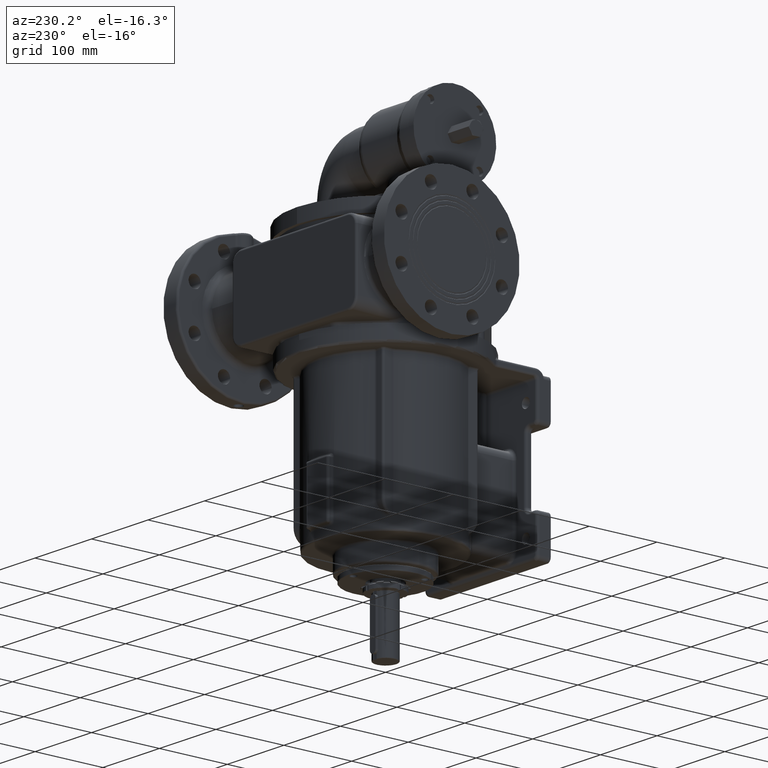
[diagram: clean part render]
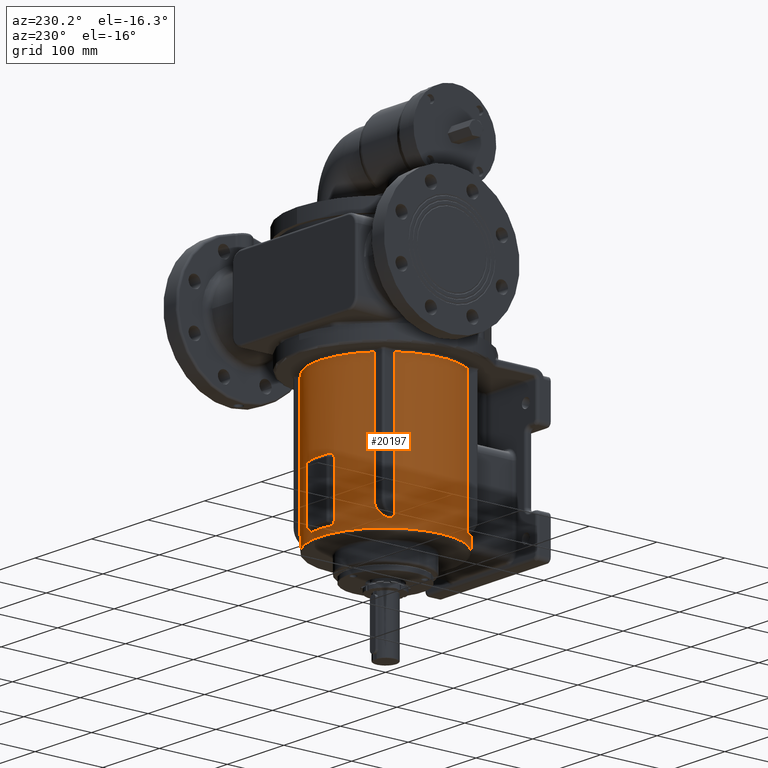
[diagram: same view with one face highlighted and labeled with its STEP entity id]
A machine part, auxiliary view. The second image highlights one B-rep face of the part: STEP entity #20197.
In plain terms, the highlighted cylindrical surface (partial cylindrical patch) has radius 97 mm, axis along (0, 0, 1).
Its self-contained STEP definition (entity closure, byte-faithful):
#336=CARTESIAN_POINT('',(5.099073145160E1,-8.251633357118E1,-2.249999999956E2));
#353=CARTESIAN_POINT('',(0.E0,0.E0,-1.7E1));
#354=DIRECTION('',(0.E0,0.E0,1.E0));
#355=DIRECTION('',(-8.316831683168E-1,5.552504908044E-1,0.E0));
#356=AXIS2_PLACEMENT_3D('',#353,#354,#355);
#358=CARTESIAN_POINT('',(-8.067326732674E1,-5.385929760802E1,
-2.084097518911E2));
#359=CARTESIAN_POINT('',(-8.067325498423E1,-5.385932750365E1,
-2.084880383604E2));
#360=CARTESIAN_POINT('',(-8.067091948046E1,-5.386280923030E1,
-2.086400965788E2));
#361=CARTESIAN_POINT('',(-8.066182519937E1,-5.387643503339E1,
-2.088529216535E2));
#362=CARTESIAN_POINT('',(-8.064766321884E1,-5.389763137762E1,
-2.090556529057E2));
#363=CARTESIAN_POINT('',(-8.062848876200E1,-5.392631386544E1,
-2.092517524823E2));
#364=CARTESIAN_POINT('',(-8.060355338765E1,-5.396358035729E1,
-2.094456327678E2));
#365=CARTESIAN_POINT('',(-8.057308359867E1,-5.400906747160E1,
-2.096368375758E2));
#366=CARTESIAN_POINT('',(-8.053762415657E1,-5.406193327052E1,
-2.098237122460E2));
#367=CARTESIAN_POINT('',(-8.049740879777E1,-5.412179887592E1,
-2.100055307023E2));
#368=CARTESIAN_POINT('',(-8.045240213112E1,-5.418868331095E1,
-2.101821079100E2));
#369=CARTESIAN_POINT('',(-8.040227830535E1,-5.426303162899E1,
-2.103531927426E2));
#370=CARTESIAN_POINT('',(-8.034667152343E1,-5.434534042379E1,
-2.105212717892E2));
#371=CARTESIAN_POINT('',(-8.028465999586E1,-5.443691657069E1,
-2.106888031758E2));
#372=CARTESIAN_POINT('',(-8.021609417020E1,-5.453791003085E1,
-2.108550754323E2));
#373=CARTESIAN_POINT('',(-8.014198413834E1,-5.464676120854E1,
-2.110167945585E2));
#374=CARTESIAN_POINT('',(-8.006318183770E1,-5.476215706841E1,
-2.111716032347E2));
#375=CARTESIAN_POINT('',(-7.997856214265E1,-5.488567811038E1,
-2.113216827411E2));
#376=CARTESIAN_POINT('',(-7.988667305293E1,-5.501935099221E1,
-2.114689060801E2));
#377=CARTESIAN_POINT('',(-7.978682056620E1,-5.516406741826E1,
-2.116133142959E2));
#378=CARTESIAN_POINT('',(-7.967962583541E1,-5.531880106952E1,
-2.117531554332E2));
#379=CARTESIAN_POINT('',(-7.956569138142E1,-5.548256298814E1,
-2.118873174497E2));
#380=CARTESIAN_POINT('',(-7.944463958626E1,-5.565577224077E1,
-2.120152642838E2));
#381=CARTESIAN_POINT('',(-7.931616880841E1,-5.583872276133E1,
-2.121363847285E2));
#382=CARTESIAN_POINT('',(-7.917994061645E1,-5.603174680586E1,
-2.122502608108E2));
#383=CARTESIAN_POINT('',(-7.903552633410E1,-5.623528669117E1,
-2.123567132882E2));
#384=CARTESIAN_POINT('',(-7.888280832410E1,-5.644932884549E1,
-2.124553192310E2));
#385=CARTESIAN_POINT('',(-7.872230574988E1,-5.667296415123E1,
-2.125444541764E2));
#386=CARTESIAN_POINT('',(-7.855467676118E1,-5.690510673607E1,
-2.126229928297E2));
#387=CARTESIAN_POINT('',(-7.837941978203E1,-5.714628122708E1,
-2.126906121398E2));
#388=CARTESIAN_POINT('',(-7.819581101250E1,-5.739728810346E1,
-2.127472166029E2));
#389=CARTESIAN_POINT('',(-7.800435326211E1,-5.765723479294E1,
-2.127916847844E2));
#390=CARTESIAN_POINT('',(-7.780624013043E1,-5.792431996820E1,
-2.128228151342E2));
#391=CARTESIAN_POINT('',(-7.760175547564E1,-5.819800334275E1,
-2.128400422921E2));
#392=CARTESIAN_POINT('',(-7.739010138326E1,-5.847918206080E1,
-2.128430204772E2));
#393=CARTESIAN_POINT('',(-7.717136712540E1,-5.876754874547E1,
-2.128310891472E2));
#394=CARTESIAN_POINT('',(-7.694692923077E1,-5.906112381164E1,
-2.128033989255E2));
#395=CARTESIAN_POINT('',(-7.671777911892E1,-5.935848810103E1,
-2.127595792555E2));
#396=CARTESIAN_POINT('',(-7.648358970222E1,-5.965995244467E1,
-2.126991740888E2));
#397=CARTESIAN_POINT('',(-7.624423903454E1,-5.996554835455E1,
-2.126216878422E2));
#398=CARTESIAN_POINT('',(-7.600031114173E1,-6.027441377768E1,
-2.125265065363E2));
#399=CARTESIAN_POINT('',(-7.575240862556E1,-6.058569019336E1,
-2.124132141794E2));
#400=CARTESIAN_POINT('',(-7.550118306129E1,-6.089848382285E1,
-2.122815614655E2));
#401=CARTESIAN_POINT('',(-7.524730437302E1,-6.121190779069E1,
-2.121314368555E2));
#402=CARTESIAN_POINT('',(-7.499108334445E1,-6.152554155406E1,
-2.119623943031E2));
#403=CARTESIAN_POINT('',(-7.473287524929E1,-6.183892302964E1,
-2.117740588235E2));
#404=CARTESIAN_POINT('',(-7.447308048079E1,-6.215155162873E1,
-2.115661259252E2));
#405=CARTESIAN_POINT('',(-7.421211260287E1,-6.246292694226E1,
-2.113382351547E2));
#406=CARTESIAN_POINT('',(-7.403775248362E1,-6.266920596459E1,
-2.111728838487E2));
#407=CARTESIAN_POINT('',(-7.395049504945E1,-6.277200237320E1,
-2.110867455410E2));
#409=CARTESIAN_POINT('',(-7.395049504945E1,-6.277200237320E1,
-2.110867455410E2));
#410=CARTESIAN_POINT('',(-7.377126728178E1,-6.298314706473E1,
-2.109098142515E2));
#411=CARTESIAN_POINT('',(-7.341611518223E1,-6.339788306087E1,
-2.105497965114E2));
#412=CARTESIAN_POINT('',(-7.289306238726E1,-6.399848778201E1,
-2.099909232251E2));
#413=CARTESIAN_POINT('',(-7.238184789730E1,-6.457599923629E1,
-2.094154587572E2));
#414=CARTESIAN_POINT('',(-7.188388966704E1,-6.512975075716E1,
-2.088250866051E2));
#415=CARTESIAN_POINT('',(-7.140075193265E1,-6.565894352423E1,
-2.082216140443E2));
#416=CARTESIAN_POINT('',(-7.093379060145E1,-6.616303985580E1,
-2.076070467753E2));
#417=CARTESIAN_POINT('',(-7.048427476464E1,-6.664160787321E1,
-2.069832982777E2));
#418=CARTESIAN_POINT('',(-7.005332444933E1,-6.709437626430E1,
-2.063522832534E2));
#419=CARTESIAN_POINT('',(-6.964186067369E1,-6.752127121401E1,
-2.057160108454E2));
#420=CARTESIAN_POINT('',(-6.925042068675E1,-6.792258822138E1,
-2.050758331924E2));
#421=CARTESIAN_POINT('',(-6.887938005584E1,-6.829874394712E1,
-2.044332168768E2));
#422=CARTESIAN_POINT('',(-6.852899223675E1,-6.865023005331E1,
-2.037893846739E2));
#423=CARTESIAN_POINT('',(-6.819936754053E1,-6.897762956533E1,
-2.031454593656E2));
#424=CARTESIAN_POINT('',(-6.789047022743E1,-6.928161545678E1,
-2.025024562749E2));
#425=CARTESIAN_POINT('',(-6.760212909814E1,-6.956293716810E1,
-2.018610464136E2));
#426=CARTESIAN_POINT('',(-6.733407044925E1,-6.982238701445E1,
-2.012218588393E2));
#427=CARTESIAN_POINT('',(-6.708599510089E1,-7.006072697868E1,
-2.005853689706E2));
#428=CARTESIAN_POINT('',(-6.685753560846E1,-7.027873278179E1,
-1.999519421708E2));
#429=CARTESIAN_POINT('',(-6.664827916092E1,-7.047717394589E1,
-1.993218109750E2));
#430=CARTESIAN_POINT('',(-6.645779642720E1,-7.065678940967E1,
-1.986950343950E2));
#431=CARTESIAN_POINT('',(-6.628565494782E1,-7.081827835374E1,
-1.980716493146E2));
#432=CARTESIAN_POINT('',(-6.613144495353E1,-7.096227950949E1,
-1.974517011672E2));
#433=CARTESIAN_POINT('',(-6.599479862271E1,-7.108935710388E1,
-1.968350700003E2));
#434=CARTESIAN_POINT('',(-6.587525707071E1,-7.120012720715E1,
-1.962215478715E2));
#435=CARTESIAN_POINT('',(-6.577246163939E1,-7.129508238702E1,
-1.956107348943E2));
#436=CARTESIAN_POINT('',(-6.568613322995E1,-7.137461480588E1,
-1.950022956412E2));
#437=CARTESIAN_POINT('',(-6.561598054313E1,-7.143910303133E1,
-1.943964256855E2));
#438=CARTESIAN_POINT('',(-6.556184248111E1,-7.148878299934E1,
-1.937931357567E2));
#439=CARTESIAN_POINT('',(-6.552350993313E1,-7.152391341466E1,
-1.931924814218E2));
#440=CARTESIAN_POINT('',(-6.550063034751E1,-7.154486393889E1,
-1.925945974551E2));
#441=CARTESIAN_POINT('',(-6.549555998688E1,-7.154950448849E1,
-1.921978877060E2));
#442=CARTESIAN_POINT('',(-6.549555970704E1,-7.154950495050E1,-1.92E2));
#444=DIRECTION('',(-2.185255912731E-11,2.000352391665E-11,1.E0));
#445=VECTOR('',#444,1.75E2);
#446=CARTESIAN_POINT('',(-6.549555970704E1,-7.154950495050E1,-1.92E2));
#447=LINE('',#446,#445);
#448=CARTESIAN_POINT('',(0.E0,0.E0,-1.7E1));
#449=DIRECTION('',(0.E0,0.E0,1.E0));
#450=DIRECTION('',(-6.752119557427E-1,-7.376237623762E-1,0.E0));
#451=AXIS2_PLACEMENT_3D('',#448,#449,#450);
#453=DIRECTION('',(6.183609285583E-13,-6.234093012219E-14,-1.E0));
#454=VECTOR('',#453,6.861410731107E1);
#455=CARTESIAN_POINT('',(-9.699999999997E0,-9.651378139934E1,-1.7E1));
#456=LINE('',#455,#454);
#457=CARTESIAN_POINT('',(-9.699999999954E0,-9.651378139935E1,
-8.561410731107E1));
#458=CARTESIAN_POINT('',(-1.042411862417E1,-9.644100453214E1,
-8.567941880918E1));
#459=CARTESIAN_POINT('',(-1.187071479101E1,-9.627915273977E1,
-8.580989379308E1));
#460=CARTESIAN_POINT('',(-1.403463417579E1,-9.598759355457E1,
-8.600506749289E1));
#461=CARTESIAN_POINT('',(-1.619137347878E1,-9.564741714908E1,
-8.619959348325E1));
#462=CARTESIAN_POINT('',(-1.833989219445E1,-9.525879149071E1,
-8.639337804410E1));
#463=CARTESIAN_POINT('',(-2.047911634940E1,-9.482191048648E1,
-8.658632430560E1));
#464=CARTESIAN_POINT('',(-2.260785091857E1,-9.433702234942E1,
-8.677832444686E1));
#465=CARTESIAN_POINT('',(-2.472501068330E1,-9.380438364380E1,
-8.696928060675E1));
#466=CARTESIAN_POINT('',(-2.682954181736E1,-9.322426751573E1,
-8.715909775146E1));
#467=CARTESIAN_POINT('',(-2.892035292604E1,-9.259698337947E1,
-8.734767738336E1));
#468=CARTESIAN_POINT('',(-3.099635913367E1,-9.192286757607E1,
-8.753492174353E1));
#469=CARTESIAN_POINT('',(-3.305648649422E1,-9.120228234148E1,
-8.772073389650E1));
#470=CARTESIAN_POINT('',(-3.509974512268E1,-9.043558651967E1,
-8.790502454996E1));
#471=CARTESIAN_POINT('',(-3.712510103678E1,-8.962317782311E1,
-8.808770050875E1));
#472=CARTESIAN_POINT('',(-3.913144282874E1,-8.876551643653E1,
-8.826866154169E1));
#473=CARTESIAN_POINT('',(-4.111774294190E1,-8.786306153849E1,
-8.844781494358E1));
#474=CARTESIAN_POINT('',(-4.308305202599E1,-8.691626264156E1,
-8.862507485615E1));
#475=CARTESIAN_POINT('',(-4.502638562493E1,-8.592560912206E1,
-8.880035264853E1));
#476=CARTESIAN_POINT('',(-4.630656412514E1,-8.523632100448E1,
-8.891581801074E1));
#477=CARTESIAN_POINT('',(-4.694265712315E1,-8.488455066865E1,
-8.897319009236E1));
#479=CARTESIAN_POINT('',(-4.694265712315E1,-8.488455066865E1,
-8.897319009236E1));
#480=CARTESIAN_POINT('',(-4.713238070277E1,-8.477962952483E1,
-8.899031294412E1));
#481=CARTESIAN_POINT('',(-4.751195664031E1,-8.456805836241E1,
-8.903182521321E1));
#482=CARTESIAN_POINT('',(-4.808224294126E1,-8.424512759498E1,
-8.911629178011E1));
#483=CARTESIAN_POINT('',(-4.865152285578E1,-8.391765719699E1,
-8.922301786755E1));
#484=CARTESIAN_POINT('',(-4.921854114325E1,-8.358635486523E1,
-8.935201424419E1));
#485=CARTESIAN_POINT('',(-4.978187904048E1,-8.325206886215E1,
-8.950316149047E1));
#486=CARTESIAN_POINT('',(-5.034020979362E1,-8.291564370123E1,
-8.967624346382E1));
#487=CARTESIAN_POINT('',(-5.089215973613E1,-8.257800200827E1,
-8.987089595151E1));
#488=CARTESIAN_POINT('',(-5.143680327229E1,-8.223983740932E1,
-9.008687225955E1));
#489=CARTESIAN_POINT('',(-5.197340063622E1,-8.190175914360E1,
-9.032395558772E1));
#490=CARTESIAN_POINT('',(-5.250126970113E1,-8.156436534996E1,
-9.058190607712E1));
#491=CARTESIAN_POINT('',(-5.301920876413E1,-8.122861790944E1,
-9.086014066845E1));
#492=CARTESIAN_POINT('',(-5.352591483603E1,-8.089559065321E1,
-9.115784145604E1));
#493=CARTESIAN_POINT('',(-5.402022002620E1,-8.056631287273E1,
-9.147404048429E1));
#494=CARTESIAN_POINT('',(-5.450104426406E1,-8.024179393261E1,
-9.180788408219E1));
#495=CARTESIAN_POINT('',(-5.496740167600E1,-7.992301363222E1,
-9.215844978186E1));
#496=CARTESIAN_POINT('',(-5.541841192583E1,-7.961090856916E1,
-9.252470281870E1));
#497=CARTESIAN_POINT('',(-5.585335438248E1,-7.930632753258E1,
-9.290556707022E1));
#498=CARTESIAN_POINT('',(-5.627161904306E1,-7.901005774303E1,
-9.329984501640E1));
#499=CARTESIAN_POINT('',(-5.667265131566E1,-7.872285844322E1,
-9.370637539413E1));
#500=CARTESIAN_POINT('',(-5.705594574554E1,-7.844546151229E1,
-9.412405639339E1));
#501=CARTESIAN_POINT('',(-5.742110804894E1,-7.817852253156E1,
-9.455169581884E1));
#502=CARTESIAN_POINT('',(-5.776804682059E1,-7.792247239146E1,
-9.498831828208E1));
#503=CARTESIAN_POINT('',(-5.809680042956E1,-7.767763431995E1,
-9.543297865492E1));
#504=CARTESIAN_POINT('',(-5.840730695822E1,-7.744439259727E1,
-9.588461411159E1));
#505=CARTESIAN_POINT('',(-5.869931491603E1,-7.722326354431E1,
-9.634192479699E1));
#506=CARTESIAN_POINT('',(-5.897274888745E1,-7.701462070803E1,
-9.680364259531E1));
#507=CARTESIAN_POINT('',(-5.922812027427E1,-7.681837055563E1,
-9.726941501412E1));
#508=CARTESIAN_POINT('',(-5.946599249837E1,-7.663435115465E1,
-9.773911466118E1));
#509=CARTESIAN_POINT('',(-5.968660565557E1,-7.646262608356E1,
-9.821206335866E1));
#510=CARTESIAN_POINT('',(-5.988996325443E1,-7.630342531404E1,
-9.868702786929E1));
#511=CARTESIAN_POINT('',(-6.007629339147E1,-7.615678619467E1,
-9.916317876527E1));
#512=CARTESIAN_POINT('',(-6.024614822696E1,-7.602246910659E1,
-9.964060320122E1));
#513=CARTESIAN_POINT('',(-6.039999102722E1,-7.590028098634E1,
-1.001195205356E2));
#514=CARTESIAN_POINT('',(-6.053800155226E1,-7.579023414431E1,
-1.005990529467E2));
#515=CARTESIAN_POINT('',(-6.066029333486E1,-7.569237723043E1,
-1.010779687591E2));
#516=CARTESIAN_POINT('',(-6.076719716875E1,-7.560656817254E1,
-1.015558662639E2));
#517=CARTESIAN_POINT('',(-6.085925690058E1,-7.553247498768E1,
-1.020337955224E2));
#518=CARTESIAN_POINT('',(-6.093674431849E1,-7.546996684028E1,
-1.025128702412E2));
#519=CARTESIAN_POINT('',(-6.099993095847E1,-7.541889775809E1,
-1.029928628226E2));
#520=CARTESIAN_POINT('',(-6.104902263503E1,-7.537916027335E1,
-1.034732256806E2));
#521=CARTESIAN_POINT('',(-6.108412725661E1,-7.535071190996E1,
-1.039535439018E2));
#522=CARTESIAN_POINT('',(-6.110526564528E1,-7.533356966564E1,
-1.044334567232E2));
#523=CARTESIAN_POINT('',(-6.110999819107E1,-7.532972767361E1,
-1.047527735650E2));
#524=CARTESIAN_POINT('',(-6.110999999980E1,-7.532972786373E1,
-1.049123052778E2));
#526=DIRECTION('',(-9.184721911339E-13,7.468671836915E-13,-1.E0));
#527=VECTOR('',#526,1.050876947145E2);
#528=CARTESIAN_POINT('',(-6.110999999980E1,-7.532972786373E1,
-1.049123052778E2));
#529=LINE('',#528,#527);
#530=CARTESIAN_POINT('',(-6.110999999990E1,-7.532972786366E1,
-2.099999999923E2));
#531=CARTESIAN_POINT('',(-6.110999572270E1,-7.532973004635E1,
-2.101590402961E2));
#532=CARTESIAN_POINT('',(-6.110528668504E1,-7.533355241990E1,
-2.104772089521E2));
#533=CARTESIAN_POINT('',(-6.108431905098E1,-7.535055642662E1,
-2.109548085445E2));
#534=CARTESIAN_POINT('',(-6.104954642153E1,-7.537873592196E1,
-2.114325073210E2));
#535=CARTESIAN_POINT('',(-6.100095642694E1,-7.541806810097E1,
-2.119101365385E2));
#536=CARTESIAN_POINT('',(-6.093842929266E1,-7.546860593626E1,
-2.123874748147E2));
#537=CARTESIAN_POINT('',(-6.086173618565E1,-7.553047676007E1,
-2.128642556922E2));
#538=CARTESIAN_POINT('',(-6.077053846270E1,-7.560388192237E1,
-2.133401556932E2));
#539=CARTESIAN_POINT('',(-6.066461788235E1,-7.568891038091E1,
-2.138158795387E2));
#540=CARTESIAN_POINT('',(-6.054361812464E1,-7.578574624399E1,
-2.142920229097E2));
#541=CARTESIAN_POINT('',(-6.040703103299E1,-7.589467663751E1,
-2.147690892799E2));
#542=CARTESIAN_POINT('',(-6.025468546441E1,-7.601570102188E1,
-2.152460570020E2));
#543=CARTESIAN_POINT('',(-6.008646441058E1,-7.614875940054E1,
-2.157218145063E2));
#544=CARTESIAN_POINT('',(-5.990226470496E1,-7.629376514005E1,
-2.161952710623E2));
#545=CARTESIAN_POINT('',(-5.970156310402E1,-7.645094379794E1,
-2.166667542759E2));
#546=CARTESIAN_POINT('',(-5.948379134841E1,-7.662053229376E1,
-2.171364088011E2));
#547=CARTESIAN_POINT('',(-5.924829611587E1,-7.680280686088E1,
-2.176043029495E2));
#548=CARTESIAN_POINT('',(-5.899502814461E1,-7.699755183389E1,
-2.180692122978E2));
#549=CARTESIAN_POINT('',(-5.872405743599E1,-7.720444436831E1,
-2.185298598140E2));
#550=CARTESIAN_POINT('',(-5.843554005107E1,-7.742308388158E1,
-2.189849784640E2));
#551=CARTESIAN_POINT('',(-5.812911443433E1,-7.765344680589E1,
-2.194340518215E2));
#552=CARTESIAN_POINT('',(-5.780445782256E1,-7.789545731789E1,
-2.198764922047E2));
#553=CARTESIAN_POINT('',(-5.746125155553E1,-7.814901366637E1,
-2.203117013822E2));
#554=CARTESIAN_POINT('',(-5.709971519996E1,-7.841359932394E1,
-2.207384595135E2));
#555=CARTESIAN_POINT('',(-5.672022424763E1,-7.868857937667E1,
-2.211555356414E2));
#556=CARTESIAN_POINT('',(-5.632325456374E1,-7.897324667043E1,
-2.215617772155E2));
#557=CARTESIAN_POINT('',(-5.590930911055E1,-7.926687923951E1,
-2.219558335997E2));
#558=CARTESIAN_POINT('',(-5.547898982591E1,-7.956869243735E1,
-2.223364296678E2));
#559=CARTESIAN_POINT('',(-5.503305901774E1,-7.987780375594E1,
-2.227023683646E2));
#560=CARTESIAN_POINT('',(-5.457201740284E1,-8.019352790129E1,
-2.230528370068E2));
#561=CARTESIAN_POINT('',(-5.409638252912E1,-8.051517971810E1,
-2.233871014717E2));
#562=CARTESIAN_POINT('',(-5.360668975359E1,-8.084207476421E1,
-2.237045176097E2));
#563=CARTESIAN_POINT('',(-5.310405360594E1,-8.117316465997E1,
-2.240039859485E2));
#564=CARTESIAN_POINT('',(-5.258978350153E1,-8.150731329213E1,
-2.242844417387E2));
#565=CARTESIAN_POINT('',(-5.206531889688E1,-8.184334851679E1,
-2.245449829044E2));
#566=CARTESIAN_POINT('',(-5.153198110230E1,-8.218022185501E1,
-2.247849379328E2));
#567=CARTESIAN_POINT('',(-5.117196972105E1,-8.240433658142E1,
-2.249306371929E2));
#568=CARTESIAN_POINT('',(-5.099073144620E1,-8.251633357452E1,
-2.249999999956E2));
#570=CARTESIAN_POINT('',(0.E0,-2.767700766073E-14,-2.25E2));
#571=DIRECTION('',(0.E0,0.E0,-1.E0));
#572=DIRECTION('',(-5.256776436283E-1,-8.506838513745E-1,0.E0));
#573=AXIS2_PLACEMENT_3D('',#570,#571,#572);
#575=CARTESIAN_POINT('',(0.E0,-2.767700766073E-14,-2.25E2));
#576=DIRECTION('',(0.E0,0.E0,-1.E0));
#577=DIRECTION('',(-1.E0,0.E0,0.E0));
#578=AXIS2_PLACEMENT_3D('',#575,#576,#577);
#580=CARTESIAN_POINT('',(0.E0,-2.767700766073E-14,-2.25E2));
#581=DIRECTION('',(0.E0,0.E0,-1.E0));
#582=DIRECTION('',(1.E0,0.E0,0.E0));
#583=AXIS2_PLACEMENT_3D('',#580,#581,#582);
#585=CARTESIAN_POINT('',(5.099073145160E1,-8.251633357118E1,-2.249999999956E2));
#586=CARTESIAN_POINT('',(5.117197273548E1,-8.240433546339E1,-2.249306381907E2));
#587=CARTESIAN_POINT('',(5.153195762139E1,-8.218023594494E1,-2.247849479500E2));
#588=CARTESIAN_POINT('',(5.206515463774E1,-8.184345257485E1,-2.245450554766E2));
#589=CARTESIAN_POINT('',(5.258942610359E1,-8.150754322693E1,-2.242846197687E2));
#590=CARTESIAN_POINT('',(5.310348105293E1,-8.117353860276E1,-2.240043074453E2));
#591=CARTESIAN_POINT('',(5.360591740296E1,-8.084258630757E1,-2.237049992949E2));
#592=CARTESIAN_POINT('',(5.409543568862E1,-8.051581553122E1,-2.233877567555E2));
#593=CARTESIAN_POINT('',(5.457103291126E1,-8.019419788669E1,-2.230535496102E2));
#594=CARTESIAN_POINT('',(5.503214856633E1,-7.987843142228E1,-2.227030330076E2));
#595=CARTESIAN_POINT('',(5.547826169777E1,-7.956920053764E1,-2.223369425943E2));
#596=CARTESIAN_POINT('',(5.590867417554E1,-7.926732720214E1,-2.219562797691E2));
#597=CARTESIAN_POINT('',(5.632265428565E1,-7.897367483569E1,-2.215622656108E2));
#598=CARTESIAN_POINT('',(5.671962641444E1,-7.868901021504E1,-2.211562099610E2));
#599=CARTESIAN_POINT('',(5.709904013485E1,-7.841409060335E1,-2.207392694815E2));
#600=CARTESIAN_POINT('',(5.746042614618E1,-7.814962013774E1,-2.203126627204E2));
#601=CARTESIAN_POINT('',(5.780351406190E1,-7.789615774420E1,-2.198775686571E2));
#602=CARTESIAN_POINT('',(5.812842446631E1,-7.765396417701E1,-2.194347891361E2));
#603=CARTESIAN_POINT('',(5.843535278266E1,-7.742322633596E1,-2.189851009746E2));
#604=CARTESIAN_POINT('',(5.872431228004E1,-7.720425088940E1,-2.185294861134E2));
#605=CARTESIAN_POINT('',(5.899512689780E1,-7.699747530560E1,-2.180692075898E2));
#606=CARTESIAN_POINT('',(5.924774494105E1,-7.680323084918E1,-2.176055461558E2));
#607=CARTESIAN_POINT('',(5.948270081849E1,-7.662137853138E1,-2.171387780657E2));
#608=CARTESIAN_POINT('',(5.970059231038E1,-7.645170251480E1,-2.166688808252E2));
#609=CARTESIAN_POINT('',(5.990185271759E1,-7.629408942860E1,-2.161960387871E2));
#610=CARTESIAN_POINT('',(6.008649438385E1,-7.614873595021E1,-2.157214765501E2));
#611=CARTESIAN_POINT('',(6.025459374384E1,-7.601577336862E1,-2.152463920592E2));
#612=CARTESIAN_POINT('',(6.040660938379E1,-7.589501193712E1,-2.147709183541E2));
#613=CARTESIAN_POINT('',(6.054304181440E1,-7.578620668196E1,-2.142946489695E2));
#614=CARTESIAN_POINT('',(6.066425229758E1,-7.568920365281E1,-2.138173659254E2));
#615=CARTESIAN_POINT('',(6.077048124963E1,-7.560392810808E1,-2.133398141340E2));
#616=CARTESIAN_POINT('',(6.086193035023E1,-7.553032046356E1,-2.128626284823E2));
#617=CARTESIAN_POINT('',(6.093887746509E1,-7.546824414026E1,-2.123857865337E2));
#618=CARTESIAN_POINT('',(6.100147099646E1,-7.541765188100E1,-2.119090337785E2));
#619=CARTESIAN_POINT('',(6.104991464183E1,-7.537843758748E1,-2.114322037650E2));
#620=CARTESIAN_POINT('',(6.108449998004E1,-7.535040990580E1,-2.109552085052E2));
#621=CARTESIAN_POINT('',(6.110532085230E1,-7.533352399543E1,-2.104779103043E2));
#622=CARTESIAN_POINT('',(6.110999673710E1,-7.532973073383E1,-2.101593543373E2));
#623=CARTESIAN_POINT('',(6.110999999996E1,-7.532972786361E1,-2.099999999956E2));
#625=DIRECTION('',(-1.841406923798E-12,-1.497520766258E-12,1.E0));
#626=VECTOR('',#625,1.050876947165E2);
#627=CARTESIAN_POINT('',(6.110999999996E1,-7.532972786361E1,-2.099999999956E2));
#628=LINE('',#627,#626);
#629=CARTESIAN_POINT('',(6.110999999976E1,-7.532972786377E1,-1.049123052791E2));
#630=CARTESIAN_POINT('',(6.110999500182E1,-7.532973006526E1,-1.047524977140E2));
#631=CARTESIAN_POINT('',(6.110522317626E1,-7.533360421231E1,-1.044327678385E2));
#632=CARTESIAN_POINT('',(6.108398987317E1,-7.535082327758E1,-1.039527386191E2));
#633=CARTESIAN_POINT('',(6.104879838450E1,-7.537934192061E1,-1.034725456802E2));
#634=CARTESIAN_POINT('',(6.099965494119E1,-7.541912101684E1,-1.029923672465E2));
#635=CARTESIAN_POINT('',(6.093645745375E1,-7.547019845551E1,-1.025124471317E2));
#636=CARTESIAN_POINT('',(6.085900454340E1,-7.553267829460E1,-1.020330248174E2));
#637=CARTESIAN_POINT('',(6.076695397620E1,-7.560676366384E1,-1.015545693180E2));
#638=CARTESIAN_POINT('',(6.066001200951E1,-7.569260265347E1,-1.010768089959E2));
#639=CARTESIAN_POINT('',(6.053788523808E1,-7.579032680848E1,-1.005989904956E2));
#640=CARTESIAN_POINT('',(6.040009439990E1,-7.590019863808E1,-1.001205224567E2));
#641=CARTESIAN_POINT('',(6.024612380831E1,-7.602248879508E1,-9.964121581405E1));
#642=CARTESIAN_POINT('',(6.007588629787E1,-7.615710786333E1,-9.916241102435E1));
#643=CARTESIAN_POINT('',(5.988930082904E1,-7.630394516909E1,-9.868530408499E1));
#644=CARTESIAN_POINT('',(5.968637422375E1,-7.646280568623E1,-9.821123675777E1));
#645=CARTESIAN_POINT('',(5.946657180546E1,-7.663390033098E1,-9.774000098513E1));
#646=CARTESIAN_POINT('',(5.922930527296E1,-7.681745637914E1,-9.727148942095E1));
#647=CARTESIAN_POINT('',(5.897386070143E1,-7.701377005469E1,-9.680557342029E1));
#648=CARTESIAN_POINT('',(5.869991556486E1,-7.722280789017E1,-9.634299445271E1));
#649=CARTESIAN_POINT('',(5.840761790270E1,-7.744415832783E1,-9.588518976462E1));
#650=CARTESIAN_POINT('',(5.809717089285E1,-7.767735674109E1,-9.543346988275E1));
#651=CARTESIAN_POINT('',(5.776877025039E1,-7.792193516960E1,-9.498904768461E1));
#652=CARTESIAN_POINT('',(5.742225019657E1,-7.817768257002E1,-9.455277848771E1));
#653=CARTESIAN_POINT('',(5.705758435810E1,-7.844426842919E1,-9.412558177880E1));
#654=CARTESIAN_POINT('',(5.667478831973E1,-7.872131881805E1,-9.370834500384E1));
#655=CARTESIAN_POINT('',(5.627415760100E1,-7.900824886198E1,-9.330215098023E1));
#656=CARTESIAN_POINT('',(5.585611570496E1,-7.930438251702E1,-9.290807811541E1));
#657=CARTESIAN_POINT('',(5.542113929200E1,-7.960901030881E1,-9.252707948297E1));
#658=CARTESIAN_POINT('',(5.496998102066E1,-7.992124002997E1,-9.216045504585E1));
#659=CARTESIAN_POINT('',(5.450358833934E1,-8.024006559775E1,-9.180960383925E1));
#660=CARTESIAN_POINT('',(5.402308513661E1,-8.056439026315E1,-9.147577091607E1));
#661=CARTESIAN_POINT('',(5.352939678157E1,-8.089328478786E1,-9.115985321852E1));
#662=CARTESIAN_POINT('',(5.302321622248E1,-8.122600107877E1,-9.086246876953E1));
#663=CARTESIAN_POINT('',(5.250529988263E1,-8.156177214414E1,-9.058416901917E1));
#664=CARTESIAN_POINT('',(5.197670069756E1,-8.189966826058E1,-9.032565477610E1));
#665=CARTESIAN_POINT('',(5.143888481073E1,-8.223853894507E1,-9.008781764709E1));
#666=CARTESIAN_POINT('',(5.089345450731E1,-8.257720531040E1,-8.987135248275E1));
#667=CARTESIAN_POINT('',(5.034147262870E1,-8.291487603710E1,-8.967656781366E1));
#668=CARTESIAN_POINT('',(4.978362180707E1,-8.325102525336E1,-8.950356800740E1));
#669=CARTESIAN_POINT('',(4.922063003354E1,-8.358512422168E1,-8.935243877333E1));
#670=CARTESIAN_POINT('',(4.865366674223E1,-8.391641458594E1,-8.922337931325E1));
#671=CARTESIAN_POINT('',(4.808411258624E1,-8.424406180281E1,-8.911654292495E1));
#672=CARTESIAN_POINT('',(4.751316223492E1,-8.456738392393E1,-8.903194374840E1));
#673=CARTESIAN_POINT('',(4.713283237321E1,-8.477937921399E1,-8.899034750765E1));
#674=CARTESIAN_POINT('',(4.694265712659E1,-8.488455066675E1,-8.897319009268E1));
#676=CARTESIAN_POINT('',(4.694265712659E1,-8.488455066675E1,-8.897319009268E1));
#677=CARTESIAN_POINT('',(4.630650288230E1,-8.523635499121E1,-8.891581248441E1));
#678=CARTESIAN_POINT('',(4.502621141873E1,-8.592570175605E1,-8.880033705473E1));
#679=CARTESIAN_POINT('',(4.308274838855E1,-8.691641419355E1,-8.862504760415E1));
#680=CARTESIAN_POINT('',(4.111732381246E1,-8.786325883273E1,-8.844777707034E1));
#681=CARTESIAN_POINT('',(3.913087139326E1,-8.876576978029E1,-8.826860999034E1));
#682=CARTESIAN_POINT('',(3.712438370268E1,-8.962347578589E1,-8.808763583485E1));
#683=CARTESIAN_POINT('',(3.509896915833E1,-9.043588802512E1,-8.790495459079E1));
#684=CARTESIAN_POINT('',(3.305564565882E1,-9.120258775245E1,-8.772065805450E1));
#685=CARTESIAN_POINT('',(3.099543444449E1,-9.192317985603E1,-8.753483834270E1));
#686=CARTESIAN_POINT('',(2.891939739928E1,-9.259728176828E1,-8.734759119881E1));
#687=CARTESIAN_POINT('',(2.682861402189E1,-9.322453396377E1,-8.715901407213E1));
#688=CARTESIAN_POINT('',(2.472416464111E1,-9.380460597787E1,-8.696920429139E1));
#689=CARTESIAN_POINT('',(2.260706112805E1,-9.433721126262E1,-8.677825321640E1));
#690=CARTESIAN_POINT('',(2.047838549896E1,-9.482206747221E1,-8.658625834389E1));
#691=CARTESIAN_POINT('',(1.833931253123E1,-9.525890176408E1,-8.639332578650E1));
#692=CARTESIAN_POINT('',(1.619094422751E1,-9.564748881316E1,-8.619955477647E1));
#693=CARTESIAN_POINT('',(1.403432009067E1,-9.598763857189E1,-8.600503915464E1));
#694=CARTESIAN_POINT('',(1.187053359791E1,-9.627917395130E1,-8.580987739921E1));
#695=CARTESIAN_POINT('',(1.042405439788E1,-9.644101088894E1,-8.567941300790E1));
#696=CARTESIAN_POINT('',(9.699999999955E0,-9.651378139935E1,-8.561410731107E1));
#698=DIRECTION('',(5.480461585368E-13,5.509198475914E-14,1.E0));
#699=VECTOR('',#698,6.861410731107E1);
#700=CARTESIAN_POINT('',(9.699999999955E0,-9.651378139935E1,-8.561410731107E1));
#701=LINE('',#700,#699);
#702=CARTESIAN_POINT('',(0.E0,0.E0,-1.7E1));
#703=DIRECTION('',(0.E0,0.E0,1.E0));
#704=DIRECTION('',(1.E-1,-9.949874371066E-1,0.E0));
#705=AXIS2_PLACEMENT_3D('',#702,#703,#704);
#707=DIRECTION('',(-2.143021252590E-11,-1.961763830814E-11,-1.E0));
#708=VECTOR('',#707,1.749999999941E2);
#709=CARTESIAN_POINT('',(6.549555971087E1,-7.154950494700E1,-1.7E1));
#710=LINE('',#709,#708);
#711=CARTESIAN_POINT('',(6.549555970712E1,-7.154950495043E1,-1.919999999941E2));
#712=CARTESIAN_POINT('',(6.549555946928E1,-7.154950326873E1,-1.922006948558E2));
#713=CARTESIAN_POINT('',(6.550085807229E1,-7.154465630434E1,-1.926023851984E2));
#714=CARTESIAN_POINT('',(6.552445436454E1,-7.152304820975E1,-1.932057890842E2));
#715=CARTESIAN_POINT('',(6.556359844444E1,-7.148717293293E1,-1.938101617772E2));
#716=CARTESIAN_POINT('',(6.561832029032E1,-7.143695415226E1,-1.944155344161E2));
#717=CARTESIAN_POINT('',(6.568877743249E1,-7.137218140810E1,-1.950219508941E2));
#718=CARTESIAN_POINT('',(6.577528078006E1,-7.129248164062E1,-1.956291913913E2));
#719=CARTESIAN_POINT('',(6.587818921906E1,-7.119741430424E1,-1.962377168258E2));
#720=CARTESIAN_POINT('',(6.599782513397E1,-7.108654758628E1,-1.968492661339E2));
#721=CARTESIAN_POINT('',(6.613482314040E1,-7.095913176423E1,-1.974655008816E2));
#722=CARTESIAN_POINT('',(6.628958340864E1,-7.081460197321E1,-1.980862831093E2));
#723=CARTESIAN_POINT('',(6.646219780483E1,-7.065264981623E1,-1.987101915341E2));
#724=CARTESIAN_POINT('',(6.665272224378E1,-7.047297174191E1,-1.993358760325E2));
#725=CARTESIAN_POINT('',(6.686175423251E1,-7.027471886130E1,-1.999642232139E2));
#726=CARTESIAN_POINT('',(6.709008681655E1,-7.005680876718E1,-2.005963117963E2));
#727=CARTESIAN_POINT('',(6.733823067052E1,-6.981837506181E1,-2.012321097699E2));
#728=CARTESIAN_POINT('',(6.760631772866E1,-6.955886626609E1,-2.018706663418E2));
#729=CARTESIAN_POINT('',(6.789451834018E1,-6.927764786661E1,-2.025112115569E2));
#730=CARTESIAN_POINT('',(6.820315746601E1,-6.897388129992E1,-2.031531753518E2));
#731=CARTESIAN_POINT('',(6.853242160709E1,-6.864680530676E1,-2.037958543405E2));
#732=CARTESIAN_POINT('',(6.888238182880E1,-6.829571498787E1,-2.044385320304E2));
#733=CARTESIAN_POINT('',(6.925296341191E1,-6.791999397552E1,-2.050801404616E2));
#734=CARTESIAN_POINT('',(6.964394778488E1,-6.751911674799E1,-2.057192935018E2));
#735=CARTESIAN_POINT('',(7.005497327436E1,-6.709265270802E1,-2.063547594967E2));
#736=CARTESIAN_POINT('',(7.048543126751E1,-6.664038235343E1,-2.069849390656E2));
#737=CARTESIAN_POINT('',(7.093447221249E1,-6.616230699717E1,-2.076079392088E2));
#738=CARTESIAN_POINT('',(7.140108097728E1,-6.565858425353E1,-2.082220463461E2));
#739=CARTESIAN_POINT('',(7.188400892865E1,-6.512961826742E1,-2.088251880756E2));
#740=CARTESIAN_POINT('',(7.238186364350E1,-6.457598131175E1,-2.094154914345E2));
#741=CARTESIAN_POINT('',(7.289308044883E1,-6.399846742825E1,-2.099909341053E2));
#742=CARTESIAN_POINT('',(7.341616030652E1,-6.339783076970E1,-2.105498303135E2));
#743=CARTESIAN_POINT('',(7.377128457674E1,-6.298312673449E1,-2.109098316393E2));
#744=CARTESIAN_POINT('',(7.395049505100E1,-6.277200237137E1,-2.110867455425E2));
#746=CARTESIAN_POINT('',(7.395049505100E1,-6.277200237137E1,-2.110867455425E2));
#747=CARTESIAN_POINT('',(7.403731955698E1,-6.266971608773E1,-2.111724524170E2));
#748=CARTESIAN_POINT('',(7.421105947837E1,-6.246417671785E1,-2.113372526517E2));
#749=CARTESIAN_POINT('',(7.447207997547E1,-6.215275165587E1,-2.115652822876E2));
#750=CARTESIAN_POINT('',(7.473235910649E1,-6.183954884406E1,-2.117736609651E2));
#751=CARTESIAN_POINT('',(7.499113730456E1,-6.152547719398E1,-2.119624062271E2));
#752=CARTESIAN_POINT('',(7.524748265452E1,-6.121168814247E1,-2.121315574963E2));
#753=CARTESIAN_POINT('',(7.550108409017E1,-6.089860547072E1,-2.122815873160E2));
#754=CARTESIAN_POINT('',(7.575214495963E1,-6.058601991604E1,-2.124131248476E2));
#755=CARTESIAN_POINT('',(7.600017979904E1,-6.027457986718E1,-2.125264076332E2));
#756=CARTESIAN_POINT('',(7.624411995215E1,-5.996569930521E1,-2.126216123096E2));
#757=CARTESIAN_POINT('',(7.648339312652E1,-5.966020510572E1,-2.126992176114E2));
#758=CARTESIAN_POINT('',(7.671818830250E1,-5.935796261730E1,-2.127597132503E2));
#759=CARTESIAN_POINT('',(7.694824759644E1,-5.905940788688E1,-2.128035107161E2));
#760=CARTESIAN_POINT('',(7.717245698999E1,-5.876611447045E1,-2.128310680600E2));
#761=CARTESIAN_POINT('',(7.739007574805E1,-5.847921291836E1,-2.128431397583E2));
#762=CARTESIAN_POINT('',(7.760151062418E1,-5.819833164844E1,-2.128401649548E2));
#763=CARTESIAN_POINT('',(7.780693931984E1,-5.792338369785E1,-2.128226222548E2));
#764=CARTESIAN_POINT('',(7.800533286651E1,-5.765590800828E1,-2.127912786445E2));
#765=CARTESIAN_POINT('',(7.819583346408E1,-5.739725411754E1,-2.127473020623E2));
#766=CARTESIAN_POINT('',(7.837880949700E1,-5.714711848644E1,-2.126910453070E2));
#767=CARTESIAN_POINT('',(7.855475716512E1,-5.690499860480E1,-2.126228730760E2));
#768=CARTESIAN_POINT('',(7.872306672815E1,-5.667190744468E1,-2.125437275968E2));
#769=CARTESIAN_POINT('',(7.888310152658E1,-5.644891679389E1,-2.124550869824E2));
#770=CARTESIAN_POINT('',(7.903501463351E1,-5.623600444603E1,-2.123573799454E2));
#771=CARTESIAN_POINT('',(7.917931128722E1,-5.603263672265E1,-2.122508190333E2));
#772=CARTESIAN_POINT('',(7.931598713482E1,-5.583898218562E1,-2.121361459679E2));
#773=CARTESIAN_POINT('',(7.944501148429E1,-5.565524245976E1,-2.120145324415E2));
#774=CARTESIAN_POINT('',(7.956632423870E1,-5.548165533062E1,-2.118866908883E2));
#775=CARTESIAN_POINT('',(7.967977731068E1,-5.531858083720E1,-2.117532986311E2));
#776=CARTESIAN_POINT('',(7.978570671609E1,-5.516567609812E1,-2.116148342475E2));
#777=CARTESIAN_POINT('',(7.988504782214E1,-5.502171161377E1,-2.114709620281E2));
#778=CARTESIAN_POINT('',(7.997834926631E1,-5.488599163141E1,-2.113215289956E2));
#779=CARTESIAN_POINT('',(8.006471982887E1,-5.475991022035E1,-2.111683914370E2));
#780=CARTESIAN_POINT('',(8.014369527908E1,-5.464425045061E1,-2.110133480821E2));
#781=CARTESIAN_POINT('',(8.021646046017E1,-5.453736934270E1,-2.108549798902E2));
#782=CARTESIAN_POINT('',(8.028412579661E1,-5.443770409877E1,-2.106908745531E2));
#783=CARTESIAN_POINT('',(8.034639852565E1,-5.434574465347E1,-2.105223336984E2));
#784=CARTESIAN_POINT('',(8.040247689123E1,-5.426273772089E1,-2.103523678471E2));
#785=CARTESIAN_POINT('',(8.045278604418E1,-5.418811342328E1,-2.101805955242E2));
#786=CARTESIAN_POINT('',(8.049786819493E1,-5.412111559216E1,-2.100043682201E2));
#787=CARTESIAN_POINT('',(8.053799508013E1,-5.406138056895E1,-2.098229137159E2));
#788=CARTESIAN_POINT('',(8.057325829471E1,-5.400880670936E1,-2.096368107104E2));
#789=CARTESIAN_POINT('',(8.060353179887E1,-5.396361252453E1,-2.094463755087E2));
#790=CARTESIAN_POINT('',(8.062835677462E1,-5.392651114951E1,-2.092526642418E2));
#791=CARTESIAN_POINT('',(8.064761695937E1,-5.389770085124E1,-2.090554847275E2));
#792=CARTESIAN_POINT('',(8.066186214565E1,-5.387637892583E1,-2.088515089074E2));
#793=CARTESIAN_POINT('',(8.067096821272E1,-5.386273923381E1,-2.086381667855E2));
#794=CARTESIAN_POINT('',(8.067326179882E1,-5.385931084304E1,-2.084872076129E2));
#795=CARTESIAN_POINT('',(8.067326732694E1,-5.385929760771E1,-2.084097518981E2));
#797=CARTESIAN_POINT('',(0.E0,0.E0,-1.7E1));
#798=DIRECTION('',(0.E0,0.E0,1.E0));
#799=DIRECTION('',(8.316831683168E-1,-5.552504908044E-1,0.E0));
#800=AXIS2_PLACEMENT_3D('',#797,#798,#799);
#802=CARTESIAN_POINT('',(8.067326732703E1,5.385929760759E1,-2.084097519005E2));
#803=CARTESIAN_POINT('',(8.067325604588E1,5.385932475285E1,-2.084880798165E2));
#804=CARTESIAN_POINT('',(8.067088859768E1,5.386285603340E1,-2.086403283047E2));
#805=CARTESIAN_POINT('',(8.066168529669E1,5.387664437048E1,-2.088540477103E2));
#806=CARTESIAN_POINT('',(8.064742316600E1,5.389799064414E1,-2.090574229362E2));
#807=CARTESIAN_POINT('',(8.062825960060E1,5.392665639735E1,-2.092534222389E2));
#808=CARTESIAN_POINT('',(8.060364170653E1,5.396344829480E1,-2.094458517154E2));
#809=CARTESIAN_POINT('',(8.057328292465E1,5.400877009553E1,-2.096360699920E2));
#810=CARTESIAN_POINT('',(8.053775757541E1,5.406173463167E1,-2.098228498450E2));
#811=CARTESIAN_POINT('',(8.049729130062E1,5.412197389990E1,-2.100054136159E2));
#812=CARTESIAN_POINT('',(8.045201040203E1,5.418926504368E1,-2.101831609545E2));
#813=CARTESIAN_POINT('',(8.040186930169E1,5.426363758538E1,-2.103548868921E2));
#814=CARTESIAN_POINT('',(8.034646412818E1,5.434564655847E1,-2.105222752234E2));
#815=CARTESIAN_POINT('',(8.028500543768E1,5.443640648039E1,-2.106881944012E2));
#816=CARTESIAN_POINT('',(8.021667335562E1,5.453705817038E1,-2.108537836424E2));
#817=CARTESIAN_POINT('',(8.014230035317E1,5.464629813041E1,-2.110159877405E2));
#818=CARTESIAN_POINT('',(8.006300692777E1,5.476241343793E1,-2.111718131475E2));
#819=CARTESIAN_POINT('',(7.997817961486E1,5.488623550190E1,-2.113222557911E2));
#820=CARTESIAN_POINT('',(7.988645292574E1,5.501967020639E1,-2.114692374783E2));
#821=CARTESIAN_POINT('',(7.978678364603E1,5.516412057108E1,-2.116134027415E2));
#822=CARTESIAN_POINT('',(7.967963793482E1,5.531878370069E1,-2.117531480042E2));
#823=CARTESIAN_POINT('',(7.956564744480E1,5.548262606190E1,-2.118873022209E2));
#824=CARTESIAN_POINT('',(7.944460421888E1,5.565582270198E1,-2.120152687915E2));
#825=CARTESIAN_POINT('',(7.931612689377E1,5.583878231218E1,-2.121364421281E2));
#826=CARTESIAN_POINT('',(7.917992417699E1,5.603176986648E1,-2.122503319311E2));
#827=CARTESIAN_POINT('',(7.903561403587E1,5.623516311767E1,-2.123566496743E2));
#828=CARTESIAN_POINT('',(7.888299163309E1,5.644907254780E1,-2.124551665579E2));
#829=CARTESIAN_POINT('',(7.872246424227E1,5.667274430800E1,-2.125443760534E2));
#830=CARTESIAN_POINT('',(7.855470814329E1,5.690506360792E1,-2.126230287744E2));
#831=CARTESIAN_POINT('',(7.837952421160E1,5.714613736865E1,-2.126906297121E2));
#832=CARTESIAN_POINT('',(7.819617772530E1,5.739678777965E1,-2.127470717024E2));
#833=CARTESIAN_POINT('',(7.800480012327E1,5.765663060980E1,-2.127915827279E2));
#834=CARTESIAN_POINT('',(7.780644454073E1,5.792404621164E1,-2.128228315810E2));
#835=CARTESIAN_POINT('',(7.760189090835E1,5.819782215737E1,-2.128401136596E2));
#836=CARTESIAN_POINT('',(7.739063218357E1,5.847847792960E1,-2.128430149069E2));
#837=CARTESIAN_POINT('',(7.717228472078E1,5.876634321214E1,-2.128311202961E2));
#838=CARTESIAN_POINT('',(7.694771009651E1,5.906010791724E1,-2.128035306699E2));
#839=CARTESIAN_POINT('',(7.671805133167E1,5.935813777587E1,-2.127597054771E2));
#840=CARTESIAN_POINT('',(7.648361488743E1,5.965992061836E1,-2.126992257073E2));
#841=CARTESIAN_POINT('',(7.624410563318E1,5.996571888768E1,-2.126216096835E2));
#842=CARTESIAN_POINT('',(7.599984665610E1,6.027500046250E1,-2.125263372061E2));
#843=CARTESIAN_POINT('',(7.575189434540E1,6.058633220381E1,-2.124130427478E2));
#844=CARTESIAN_POINT('',(7.550118226692E1,6.089848288335E1,-2.122816443933E2));
#845=CARTESIAN_POINT('',(7.524761045715E1,6.121153159434E1,-2.121316176579E2));
#846=CARTESIAN_POINT('',(7.499103044522E1,6.152560822070E1,-2.119623292012E2));
#847=CARTESIAN_POINT('',(7.473209757821E1,6.183986526095E1,-2.117734559925E2));
#848=CARTESIAN_POINT('',(7.447175224088E1,6.215314436941E1,-2.115650031379E2));
#849=CARTESIAN_POINT('',(7.421079497631E1,6.246449051783E1,-2.113370050964E2));
#850=CARTESIAN_POINT('',(7.403721475374E1,6.266983941104E1,-2.111723483501E2));
#851=CARTESIAN_POINT('',(7.395049505196E1,6.277200237025E1,-2.110867455434E2));
#853=CARTESIAN_POINT('',(7.395049505196E1,6.277200237025E1,-2.110867455434E2));
#854=CARTESIAN_POINT('',(7.377172662810E1,6.298260474910E1,-2.109102650101E2));
#855=CARTESIAN_POINT('',(7.341720211156E1,6.339662259711E1,-2.105509559726E2));
#856=CARTESIAN_POINT('',(7.289405647389E1,6.399735780749E1,-2.099921493483E2));
#857=CARTESIAN_POINT('',(7.238239329488E1,6.457539077435E1,-2.094162241824E2));
#858=CARTESIAN_POINT('',(7.188404045441E1,6.512958564247E1,-2.088252475005E2));
#859=CARTESIAN_POINT('',(7.140095674701E1,6.565871858568E1,-2.082218485229E2));
#860=CARTESIAN_POINT('',(7.093472544932E1,6.616203303079E1,-2.076084573703E2));
#861=CARTESIAN_POINT('',(7.048613864780E1,6.663963247779E1,-2.069861927890E2));
#862=CARTESIAN_POINT('',(7.005591430519E1,6.709166971701E1,-2.063563865901E2));
#863=CARTESIAN_POINT('',(6.964484943E1,6.751818750597E1,-2.057207305362E2));
#864=CARTESIAN_POINT('',(6.925356181103E1,6.791938532159E1,-2.050811041362E2));
#865=CARTESIAN_POINT('',(6.888259418387E1,6.829550198311E1,-2.044390814250E2));
#866=CARTESIAN_POINT('',(6.853242840435E1,6.864679870114E1,-2.037960774790E2));
#867=CARTESIAN_POINT('',(6.820321381641E1,6.897382529336E1,-2.031533281393E2));
#868=CARTESIAN_POINT('',(6.789457603461E1,6.927759181368E1,-2.025112299754E2));
#869=CARTESIAN_POINT('',(6.760606318662E1,6.955911454551E1,-2.018701083768E2));
#870=CARTESIAN_POINT('',(6.733777219257E1,6.981881725352E1,-2.012311308735E2));
#871=CARTESIAN_POINT('',(6.708982188688E1,7.005706171910E1,-2.005957795762E2));
#872=CARTESIAN_POINT('',(6.686184674357E1,7.027463030267E1,-1.999645951600E2));
#873=CARTESIAN_POINT('',(6.665290513966E1,7.047279897546E1,-1.993364216417E2));
#874=CARTESIAN_POINT('',(6.646215016606E1,7.065269500795E1,-1.987097778523E2));
#875=CARTESIAN_POINT('',(6.628939573773E1,7.081477773363E1,-1.980853325391E2));
#876=CARTESIAN_POINT('',(6.613465358107E1,7.095928964119E1,-1.974646830104E2));
#877=CARTESIAN_POINT('',(6.599782154571E1,7.108655076713E1,-1.968493253035E2));
#878=CARTESIAN_POINT('',(6.587824946646E1,7.119735852576E1,-1.962382178865E2));
#879=CARTESIAN_POINT('',(6.577538568539E1,7.129238481567E1,-1.956297886505E2));
#880=CARTESIAN_POINT('',(6.568891250777E1,7.137205708703E1,-1.950222869709E2));
#881=CARTESIAN_POINT('',(6.561843745045E1,7.143684654825E1,-1.944157259234E2));
#882=CARTESIAN_POINT('',(6.556368037982E1,7.148709781849E1,-1.938102237382E2));
#883=CARTESIAN_POINT('',(6.552449573972E1,7.152301025551E1,-1.932057717129E2));
#884=CARTESIAN_POINT('',(6.550086745379E1,7.154464793997E1,-1.926023384395E2));
#885=CARTESIAN_POINT('',(6.549555943678E1,7.154950282059E1,-1.922006725302E2));
#886=CARTESIAN_POINT('',(6.549555970710E1,7.154950495044E1,-1.919999999955E2));
#888=DIRECTION('',(2.149119739367E-11,-1.967342606334E-11,1.E0));
#889=VECTOR('',#888,1.749999999955E2);
#890=CARTESIAN_POINT('',(6.549555970710E1,7.154950495044E1,-1.919999999955E2));
#891=LINE('',#890,#889);
#892=CARTESIAN_POINT('',(0.E0,0.E0,-1.7E1));
#893=DIRECTION('',(0.E0,0.E0,1.E0));
#894=DIRECTION('',(6.752119557427E-1,7.376237623762E-1,0.E0));
#895=AXIS2_PLACEMENT_3D('',#892,#893,#894);
#897=DIRECTION('',(2.180521667989E-11,1.995999809879E-11,-1.E0));
#898=VECTOR('',#897,1.75E2);
#899=CARTESIAN_POINT('',(-6.549555971086E1,7.154950494700E1,-1.7E1));
#900=LINE('',#899,#898);
#901=CARTESIAN_POINT('',(-6.549555970704E1,7.154950495049E1,-1.92E2));
#902=CARTESIAN_POINT('',(-6.549556050401E1,7.154950419950E1,-1.921981690555E2));
#903=CARTESIAN_POINT('',(-6.550063651945E1,7.154485820495E1,-1.925954147107E2));
#904=CARTESIAN_POINT('',(-6.552355785667E1,7.152386955044E1,-1.931940356941E2));
#905=CARTESIAN_POINT('',(-6.556198992479E1,7.148864782653E1,-1.937953195991E2));
#906=CARTESIAN_POINT('',(-6.561627336697E1,7.143883414668E1,-1.943991234136E2));
#907=CARTESIAN_POINT('',(-6.568653475127E1,7.137424535307E1,-1.950054070220E2));
#908=CARTESIAN_POINT('',(-6.577297394161E1,7.129460986102E1,-1.956140767036E2));
#909=CARTESIAN_POINT('',(-6.587588375183E1,7.119954749208E1,-1.962249584459E2));
#910=CARTESIAN_POINT('',(-6.599552287909E1,7.108868485199E1,-1.968385439092E2));
#911=CARTESIAN_POINT('',(-6.613226688695E1,7.096151364890E1,-1.974552001492E2));
#912=CARTESIAN_POINT('',(-6.628657434651E1,7.081741792940E1,-1.980751507812E2));
#913=CARTESIAN_POINT('',(-6.645881101856E1,7.065583525920E1,-1.986985303080E2));
#914=CARTESIAN_POINT('',(-6.664939310205E1,7.047612069378E1,-1.993253145119E2));
#915=CARTESIAN_POINT('',(-6.685875182757E1,7.027757595638E1,-1.999554510650E2));
#916=CARTESIAN_POINT('',(-6.708730680773E1,7.005947113977E1,-2.005888596714E2));
#917=CARTESIAN_POINT('',(-6.733546027408E1,6.982104688109E1,-2.012252998240E2));
#918=CARTESIAN_POINT('',(-6.760359982382E1,6.956150812602E1,-2.018644336118E2));
#919=CARTESIAN_POINT('',(-6.789204493749E1,6.928007264545E1,-2.025058325602E2));
#920=CARTESIAN_POINT('',(-6.820103949386E1,6.897597673355E1,-2.031488599659E2));
#921=CARTESIAN_POINT('',(-6.853073821960E1,6.864848730917E1,-2.037926660931E2));
#922=CARTESIAN_POINT('',(-6.888115805873E1,6.829695089537E1,-2.044363962907E2));
#923=CARTESIAN_POINT('',(-6.925222882570E1,6.792074489668E1,-2.050789073354E2));
#924=CARTESIAN_POINT('',(-6.964375300718E1,6.751931999990E1,-2.057189782928E2));
#925=CARTESIAN_POINT('',(-7.005536237537E1,6.709224889206E1,-2.063553924387E2));
#926=CARTESIAN_POINT('',(-7.048632622901E1,6.663943786994E1,-2.069862197208E2));
#927=CARTESIAN_POINT('',(-7.093573560254E1,6.616095383921E1,-2.076096470063E2));
#928=CARTESIAN_POINT('',(-7.140249996719E1,6.565704146880E1,-2.082238986568E2));
#929=CARTESIAN_POINT('',(-7.188538705789E1,6.512809652321E1,-2.088268998474E2));
#930=CARTESIAN_POINT('',(-7.238301858822E1,6.457468494292E1,-2.094167920380E2));
#931=CARTESIAN_POINT('',(-7.289384801778E1,6.399759053241E1,-2.099917951419E2));
#932=CARTESIAN_POINT('',(-7.341650429447E1,6.339742996021E1,-2.105501991424E2));
#933=CARTESIAN_POINT('',(-7.377139742512E1,6.298299368509E1,-2.109099426892E2));
#934=CARTESIAN_POINT('',(-7.395049504921E1,6.277200237348E1,-2.110867455407E2));
#936=CARTESIAN_POINT('',(-7.395049504921E1,6.277200237348E1,-2.110867455407E2));
#937=CARTESIAN_POINT('',(-7.403769033461E1,6.266927932988E1,-2.111728192764E2));
#938=CARTESIAN_POINT('',(-7.421198279977E1,6.246308114535E1,-2.113381063409E2));
#939=CARTESIAN_POINT('',(-7.447307036300E1,6.215156441732E1,-2.115661106392E2));
#940=CARTESIAN_POINT('',(-7.473308779518E1,6.183866702017E1,-2.117742140942E2));
#941=CARTESIAN_POINT('',(-7.499153994256E1,6.152498577059E1,-2.119626883133E2));
#942=CARTESIAN_POINT('',(-7.524790859347E1,6.121116527939E1,-2.121318401259E2));
#943=CARTESIAN_POINT('',(-7.550173024791E1,6.089780463801E1,-2.122819333768E2));
#944=CARTESIAN_POINT('',(-7.575258412111E1,6.058546917850E1,-2.124132934838E2));
#945=CARTESIAN_POINT('',(-7.600008774088E1,6.027469447941E1,-2.125263352566E2));
#946=CARTESIAN_POINT('',(-7.624390565977E1,5.996597235784E1,-2.126215786335E2));
#947=CARTESIAN_POINT('',(-7.648346736611E1,5.966011077264E1,-2.126992346915E2));
#948=CARTESIAN_POINT('',(-7.671822793473E1,5.935791011565E1,-2.127596543026E2));
#949=CARTESIAN_POINT('',(-7.694767965060E1,5.906014542274E1,-2.128033679950E2));
#950=CARTESIAN_POINT('',(-7.717136785154E1,5.876754396146E1,-2.128310580608E2));
#951=CARTESIAN_POINT('',(-7.738903633935E1,5.848058891276E1,-2.128431143392E2));
#952=CARTESIAN_POINT('',(-7.760045902424E1,5.819973289583E1,-2.128400888507E2));
#953=CARTESIAN_POINT('',(-7.780548147190E1,5.792534090680E1,-2.128227104898E2));
#954=CARTESIAN_POINT('',(-7.800393481334E1,5.765780094879E1,-2.127917221081E2));
#955=CARTESIAN_POINT('',(-7.819519485058E1,5.739812682529E1,-2.127475179650E2));
#956=CARTESIAN_POINT('',(-7.837877540373E1,5.714716562024E1,-2.126908793156E2));
#957=CARTESIAN_POINT('',(-7.855424650584E1,5.690570058521E1,-2.126229228893E2));
#958=CARTESIAN_POINT('',(-7.872142009276E1,5.667419204783E1,-2.125447641863E2));
#959=CARTESIAN_POINT('',(-7.888111902412E1,5.645168808527E1,-2.124563897892E2));
#960=CARTESIAN_POINT('',(-7.903385422565E1,5.623763769248E1,-2.123580179306E2));
#961=CARTESIAN_POINT('',(-7.917877978497E1,5.603338842369E1,-2.122509975675E2));
#962=CARTESIAN_POINT('',(-7.931537851414E1,5.583984586933E1,-2.121368721293E2));
#963=CARTESIAN_POINT('',(-7.944397164640E1,5.565672572730E1,-2.120158209108E2));
#964=CARTESIAN_POINT('',(-7.956497995976E1,5.548358292629E1,-2.118881405396E2));
#965=CARTESIAN_POINT('',(-7.967871922571E1,5.532010637947E1,-2.117543139514E2));
#966=CARTESIAN_POINT('',(-7.978569608066E1,5.516569358483E1,-2.116147560999E2));
#967=CARTESIAN_POINT('',(-7.988563317086E1,5.502086133571E1,-2.114702942789E2));
#968=CARTESIAN_POINT('',(-7.997793256759E1,5.488659635325E1,-2.113224933269E2));
#969=CARTESIAN_POINT('',(-8.006311779060E1,5.476225170529E1,-2.111715147918E2));
#970=CARTESIAN_POINT('',(-8.014252951862E1,5.464596204510E1,-2.110155961230E2));
#971=CARTESIAN_POINT('',(-8.021679747780E1,5.453687532674E1,-2.108537610919E2));
#972=CARTESIAN_POINT('',(-8.028486620381E1,5.443661142676E1,-2.106889119564E2));
#973=CARTESIAN_POINT('',(-8.034602081843E1,5.434630169689E1,-2.105238678956E2));
#974=CARTESIAN_POINT('',(-8.040133121680E1,5.426443490176E1,-2.103567458435E2));
#975=CARTESIAN_POINT('',(-8.045163751826E1,5.418981889E1,-2.101841102313E2));
#976=CARTESIAN_POINT('',(-8.049720740101E1,5.412209890993E1,-2.100054183253E2));
#977=CARTESIAN_POINT('',(-8.053785221509E1,5.406159370145E1,-2.098223549912E2));
#978=CARTESIAN_POINT('',(-8.057337040801E1,5.400863953257E1,-2.096359363564E2));
#979=CARTESIAN_POINT('',(-8.060360756297E1,5.396349919539E1,-2.094465338194E2));
#980=CARTESIAN_POINT('',(-8.062804170237E1,5.392698213626E1,-2.092548399226E2));
#981=CARTESIAN_POINT('',(-8.064724403068E1,5.389825876545E1,-2.090586738646E2));
#982=CARTESIAN_POINT('',(-8.066158644184E1,5.387679220595E1,-2.088547805963E2));
#983=CARTESIAN_POINT('',(-8.067086951818E1,5.386288530075E1,-2.086404485116E2));
#984=CARTESIAN_POINT('',(-8.067325752101E1,5.385932106991E1,-2.084880902108E2));
#985=CARTESIAN_POINT('',(-8.067326732673E1,5.385929760802E1,-2.084097518910E2));
#987=CARTESIAN_POINT('',(-2.231000000091E1,9.439949099418E1,-1.359999999515E2));
#988=CARTESIAN_POINT('',(-2.230999114811E1,9.439949463798E1,-1.359099769663E2));
#989=CARTESIAN_POINT('',(-2.230599257419E1,9.440043750473E1,-1.357301227523E2));
#990=CARTESIAN_POINT('',(-2.228820633746E1,9.440464015828E1,-1.354606409899E2));
#991=CARTESIAN_POINT('',(-2.225874360752E1,9.441159225966E1,-1.351922849340E2));
#992=CARTESIAN_POINT('',(-2.221770263209E1,9.442126061057E1,-1.349255790080E2));
#993=CARTESIAN_POINT('',(-2.216516089564E1,9.443361069073E1,-1.346611256485E2));
#994=CARTESIAN_POINT('',(-2.210117788E1,9.444860844524E1,-1.343995165784E2));
#995=CARTESIAN_POINT('',(-2.202579107366E1,9.446622056357E1,-1.341413350124E2));
#996=CARTESIAN_POINT('',(-2.193919209431E1,9.448637375965E1,-1.338868997810E2));
#997=CARTESIAN_POINT('',(-2.184153420110E1,9.450900016883E1,-1.336365495951E2));
#998=CARTESIAN_POINT('',(-2.173295369257E1,9.453403236732E1,-1.333906703232E2));
#999=CARTESIAN_POINT('',(-2.161368103632E1,9.456137808706E1,-1.331498881122E2));
#1000=CARTESIAN_POINT('',(-2.148395629866E1,9.459094032961E1,
-1.329148108904E2));
#1001=CARTESIAN_POINT('',(-2.134402880477E1,9.462261772689E1,
-1.326860305123E2));
#1002=CARTESIAN_POINT('',(-2.119423411811E1,9.465628771202E1,
-1.324639674521E2));
#1003=CARTESIAN_POINT('',(-2.103490337811E1,9.469182774359E1,
-1.322490563604E2));
#1004=CARTESIAN_POINT('',(-2.086638020935E1,9.472911185293E1,
-1.320417460781E2));
#1005=CARTESIAN_POINT('',(-2.068904249214E1,9.476800639192E1,
-1.318425160259E2));
#1006=CARTESIAN_POINT('',(-2.050327644301E1,9.480837636338E1,
-1.316518533729E2));
#1007=CARTESIAN_POINT('',(-2.030945800736E1,9.485008982455E1,
-1.314701645128E2));
#1008=CARTESIAN_POINT('',(-2.010797355436E1,9.489301377277E1,
-1.312976986509E2));
#1009=CARTESIAN_POINT('',(-1.989918465543E1,9.493702192132E1,
-1.311347274201E2));
#1010=CARTESIAN_POINT('',(-1.968354473365E1,9.498197050451E1,
-1.309815956713E2));
#1011=CARTESIAN_POINT('',(-1.946159153690E1,9.502770135884E1,
-1.308386853208E2));
#1012=CARTESIAN_POINT('',(-1.923385779096E1,9.507406133275E1,
-1.307063608236E2));
#1013=CARTESIAN_POINT('',(-1.900089369339E1,9.512089805142E1,
-1.305848802241E2));
#1014=CARTESIAN_POINT('',(-1.876325425975E1,9.516806289949E1,
-1.304744431251E2));
#1015=CARTESIAN_POINT('',(-1.852151896776E1,9.521540775395E1,
-1.303752459905E2));
#1016=CARTESIAN_POINT('',(-1.827603149263E1,9.526283535852E1,
-1.302873807371E2));
#1017=CARTESIAN_POINT('',(-1.802709296250E1,9.531025968380E1,
-1.302109521643E2));
#1018=CARTESIAN_POINT('',(-1.777499174095E1,9.535759973989E1,-1.301461036E2));
#1019=CARTESIAN_POINT('',(-1.752037444004E1,9.540471164560E1,
-1.300929219309E2));
#1020=CARTESIAN_POINT('',(-1.726389478828E1,9.545145726633E1,
-1.300514734389E2));
#1021=CARTESIAN_POINT('',(-1.700622671065E1,9.549770257138E1,
-1.300218147260E2));
#1022=CARTESIAN_POINT('',(-1.674795779437E1,9.554333412239E1,
-1.300039886833E2));
#1023=CARTESIAN_POINT('',(-1.657598518565E1,9.557324196174E1,
-1.300000096900E2));
#1024=CARTESIAN_POINT('',(-1.648999999847E1,9.558807404719E1,-1.3E2));
#1026=CARTESIAN_POINT('',(0.E0,-1.604286306883E-14,-1.3E2));
#1027=DIRECTION('',(0.E0,0.E0,-1.E0));
#1028=DIRECTION('',(-1.7E-1,9.854440623394E-1,0.E0));
#1029=AXIS2_PLACEMENT_3D('',#1026,#1027,#1028);
#1031=CARTESIAN_POINT('',(-1.368353390040E1,9.602999999998E1,-1.3E2));
#1032=CARTESIAN_POINT('',(-1.305676857885E1,9.611930835700E1,
-1.300000032880E2));
#1033=CARTESIAN_POINT('',(-1.180065741104E1,9.628578126801E1,
-1.300039807972E2));
#1034=CARTESIAN_POINT('',(-9.907804041514E0,9.649894132338E1,
-1.300179883091E2));
#1035=CARTESIAN_POINT('',(-8.011897735544E0,9.667478862458E1,
-1.300361268402E2));
#1036=CARTESIAN_POINT('',(-6.118797218351E0,9.681300066191E1,
-1.300541622714E2));
#1037=CARTESIAN_POINT('',(-4.225854036032E0,9.691411636876E1,
-1.300691462674E2));
#1038=CARTESIAN_POINT('',(-2.316159947350E0,9.697869736345E1,
-1.300800046847E2));
#1039=CARTESIAN_POINT('',(-3.751778523087E-1,9.700590161757E1,
-1.300850716296E2));
#1040=CARTESIAN_POINT('',(1.611214650006E0,9.699351666541E1,-1.300824911551E2));
#1041=CARTESIAN_POINT('',(3.625192894996E0,9.693927820182E1,-1.300731687753E2));
#1042=CARTESIAN_POINT('',(5.650649536060E0,9.684234476660E1,-1.300584158170E2));
#1043=CARTESIAN_POINT('',(7.668478049167E0,9.670342775400E1,-1.300393745013E2));
#1044=CARTESIAN_POINT('',(9.676898303856E0,9.652311109132E1,-1.300198161117E2));
#1045=CARTESIAN_POINT('',(1.168041077148E1,9.630122241117E1,-1.300044582030E2));
#1046=CARTESIAN_POINT('',(1.301613516393E1,9.612509818772E1,-1.300000038084E2));
#1047=CARTESIAN_POINT('',(1.368353390040E1,9.602999999998E1,-1.3E2));
#1049=CARTESIAN_POINT('',(0.E0,-1.604286306883E-14,-1.3E2));
#1050=DIRECTION('',(0.E0,0.E0,-1.E0));
#1051=DIRECTION('',(1.410673597967E-1,9.9E-1,0.E0));
#1052=AXIS2_PLACEMENT_3D('',#1049,#1050,#1051);
#1054=CARTESIAN_POINT('',(1.649000001754E1,9.558807404390E1,-1.300000000001E2));
#1055=CARTESIAN_POINT('',(1.657833516312E1,9.557283663200E1,-1.300000116043E2));
#1056=CARTESIAN_POINT('',(1.675506774009E1,9.554209434913E1,-1.300042232437E2));
#1057=CARTESIAN_POINT('',(1.702070837410E1,9.549512956988E1,-1.300230986396E2));
#1058=CARTESIAN_POINT('',(1.728582397394E1,9.544749544781E1,-1.300545114384E2));
#1059=CARTESIAN_POINT('',(1.754972699250E1,9.539932351347E1,-1.300984123103E2));
#1060=CARTESIAN_POINT('',(1.781162350785E1,9.535077086593E1,-1.301547288210E2));
#1061=CARTESIAN_POINT('',(1.807076687973E1,9.530199511773E1,-1.302233665126E2));
#1062=CARTESIAN_POINT('',(1.832633843009E1,9.525317611090E1,-1.303042107884E2));
#1063=CARTESIAN_POINT('',(1.857800061905E1,9.520440880420E1,-1.303971100798E2));
#1064=CARTESIAN_POINT('',(1.882554894922E1,9.515576478574E1,-1.305019603977E2));
#1065=CARTESIAN_POINT('',(1.906872863160E1,9.510732721829E1,-1.306187119466E2));
#1066=CARTESIAN_POINT('',(1.930689386365E1,9.505926091969E1,-1.307471441178E2));
#1067=CARTESIAN_POINT('',(1.953938896815E1,9.501173910319E1,-1.308870004592E2));
#1068=CARTESIAN_POINT('',(1.976559208006E1,9.496493374938E1,-1.310379752553E2));
#1069=CARTESIAN_POINT('',(1.998495177582E1,9.491900707051E1,-1.311996838157E2));
#1070=CARTESIAN_POINT('',(2.019691278057E1,9.487412607925E1,-1.313717323810E2));
#1071=CARTESIAN_POINT('',(2.040097314357E1,9.483044992382E1,-1.315537396250E2));
#1072=CARTESIAN_POINT('',(2.059662888128E1,9.478814086741E1,-1.317453332055E2));
#1073=CARTESIAN_POINT('',(2.078345226689E1,9.474734675650E1,-1.319461021127E2));
#1074=CARTESIAN_POINT('',(2.096110662721E1,9.470819638756E1,-1.321556275730E2));
#1075=CARTESIAN_POINT('',(2.112922145408E1,9.467082611023E1,-1.323734879854E2));
#1076=CARTESIAN_POINT('',(2.128738464255E1,9.463538160953E1,-1.325992104225E2));
#1077=CARTESIAN_POINT('',(2.143521585467E1,9.460200123747E1,-1.328323122064E2));
#1078=CARTESIAN_POINT('',(2.157243464353E1,9.457079966912E1,-1.330722524766E2));
#1079=CARTESIAN_POINT('',(2.169874310317E1,9.454189365593E1,-1.333185008380E2));
#1080=CARTESIAN_POINT('',(2.181380664648E1,9.451540630180E1,-1.335704488723E2));
#1081=CARTESIAN_POINT('',(2.191731910450E1,9.449145181596E1,-1.338274807544E2));
#1082=CARTESIAN_POINT('',(2.200908523195E1,9.447011563E1,-1.340889178789E2));
#1083=CARTESIAN_POINT('',(2.208891190415E1,9.445147896783E1,-1.343540673148E2));
#1084=CARTESIAN_POINT('',(2.215673153054E1,9.443558958901E1,-1.346226488571E2));
#1085=CARTESIAN_POINT('',(2.221240951280E1,9.442250642750E1,-1.348944978950E2));
#1086=CARTESIAN_POINT('',(2.225586665711E1,9.441227080625E1,-1.351689450719E2));
#1087=CARTESIAN_POINT('',(2.228702445037E1,9.440491914341E1,-1.354451819707E2));
#1088=CARTESIAN_POINT('',(2.230579711753E1,9.440048430042E1,-1.357225337662E2));
#1089=CARTESIAN_POINT('',(2.230999615916E1,9.439949218846E1,-1.359074664624E2));
#1090=CARTESIAN_POINT('',(2.230999999999E1,9.439949099439E1,-1.360000000007E2));
#1092=DIRECTION('',(1.248606022572E-11,-2.928396262327E-12,-1.E0));
#1093=VECTOR('',#1092,7.400000004779E1);
#1094=CARTESIAN_POINT('',(2.230999999999E1,9.439949099439E1,-1.360000000007E2));
#1095=LINE('',#1094,#1093);
#1096=CARTESIAN_POINT('',(2.231000000091E1,9.439949099418E1,-2.100000000485E2));
#1097=CARTESIAN_POINT('',(2.230999114811E1,9.439949463798E1,-2.100900230337E2));
#1098=CARTESIAN_POINT('',(2.230599257419E1,9.440043750473E1,-2.102698772477E2));
#1099=CARTESIAN_POINT('',(2.228820633746E1,9.440464015828E1,-2.105393590101E2));
#1100=CARTESIAN_POINT('',(2.225874360752E1,9.441159225966E1,-2.108077150660E2));
#1101=CARTESIAN_POINT('',(2.221770263209E1,9.442126061057E1,-2.110744209920E2));
#1102=CARTESIAN_POINT('',(2.216516089564E1,9.443361069073E1,-2.113388743515E2));
#1103=CARTESIAN_POINT('',(2.210117788E1,9.444860844524E1,-2.116004834216E2));
#1104=CARTESIAN_POINT('',(2.202579107366E1,9.446622056357E1,-2.118586649876E2));
#1105=CARTESIAN_POINT('',(2.193919209431E1,9.448637375965E1,-2.121131002190E2));
#1106=CARTESIAN_POINT('',(2.184153420110E1,9.450900016883E1,-2.123634504049E2));
#1107=CARTESIAN_POINT('',(2.173295369257E1,9.453403236732E1,-2.126093296768E2));
#1108=CARTESIAN_POINT('',(2.161368103632E1,9.456137808706E1,-2.128501118878E2));
#1109=CARTESIAN_POINT('',(2.148395629866E1,9.459094032961E1,-2.130851891096E2));
#1110=CARTESIAN_POINT('',(2.134402880477E1,9.462261772689E1,-2.133139694877E2));
#1111=CARTESIAN_POINT('',(2.119423411811E1,9.465628771203E1,-2.135360325479E2));
#1112=CARTESIAN_POINT('',(2.103490337811E1,9.469182774359E1,-2.137509436396E2));
#1113=CARTESIAN_POINT('',(2.086638020935E1,9.472911185293E1,-2.139582539219E2));
#1114=CARTESIAN_POINT('',(2.068904249214E1,9.476800639192E1,-2.141574839741E2));
#1115=CARTESIAN_POINT('',(2.050327644300E1,9.480837636338E1,-2.143481466271E2));
#1116=CARTESIAN_POINT('',(2.030945800735E1,9.485008982455E1,-2.145298354873E2));
#1117=CARTESIAN_POINT('',(2.010797355435E1,9.489301377277E1,-2.147023013491E2));
#1118=CARTESIAN_POINT('',(1.989918465543E1,9.493702192132E1,-2.148652725799E2));
#1119=CARTESIAN_POINT('',(1.968354473365E1,9.498197050451E1,-2.150184043287E2));
#1120=CARTESIAN_POINT('',(1.946159153690E1,9.502770135884E1,-2.151613146792E2));
#1121=CARTESIAN_POINT('',(1.923385779096E1,9.507406133275E1,-2.152936391764E2));
#1122=CARTESIAN_POINT('',(1.900089369339E1,9.512089805142E1,-2.154151197759E2));
#1123=CARTESIAN_POINT('',(1.876325425975E1,9.516806289949E1,-2.155255568749E2));
#1124=CARTESIAN_POINT('',(1.852151896776E1,9.521540775395E1,-2.156247540095E2));
#1125=CARTESIAN_POINT('',(1.827603149263E1,9.526283535852E1,-2.157126192629E2));
#1126=CARTESIAN_POINT('',(1.802709296250E1,9.531025968380E1,-2.157890478357E2));
#1127=CARTESIAN_POINT('',(1.777499174094E1,9.535759973989E1,-2.158538964E2));
#1128=CARTESIAN_POINT('',(1.752037444003E1,9.540471164560E1,-2.159070780691E2));
#1129=CARTESIAN_POINT('',(1.726389478827E1,9.545145726633E1,-2.159485265611E2));
#1130=CARTESIAN_POINT('',(1.700622671065E1,9.549770257138E1,-2.159781852740E2));
#1131=CARTESIAN_POINT('',(1.674795779436E1,9.554333412239E1,-2.159960113167E2));
#1132=CARTESIAN_POINT('',(1.657598518565E1,9.557324196174E1,-2.159999903100E2));
#1133=CARTESIAN_POINT('',(1.648999999847E1,9.558807404719E1,-2.16E2));
#1135=CARTESIAN_POINT('',(0.E0,-2.657482554150E-14,-2.16E2));
#1136=DIRECTION('',(0.E0,0.E0,1.E0));
#1137=DIRECTION('',(1.7E-1,9.854440623394E-1,0.E0));
#1138=AXIS2_PLACEMENT_3D('',#1135,#1136,#1137);
#1140=CARTESIAN_POINT('',(1.368353390040E1,9.602999999998E1,-2.16E2));
#1141=CARTESIAN_POINT('',(1.305666178372E1,9.611932357403E1,-2.159999967078E2));
#1142=CARTESIAN_POINT('',(1.180032943432E1,9.628582380817E1,-2.159960179706E2));
#1143=CARTESIAN_POINT('',(9.907106643895E0,9.649901538160E1,-2.159820061757E2));
#1144=CARTESIAN_POINT('',(8.010838662610E0,9.667487866871E1,-2.159638630293E2));
#1145=CARTESIAN_POINT('',(6.117413026388E0,9.681309004982E1,-2.159458250536E2));
#1146=CARTESIAN_POINT('',(4.224219026468E0,9.691418895795E1,-2.159308421949E2));
#1147=CARTESIAN_POINT('',(2.314382934386E0,9.697874029892E1,-2.159199880106E2));
#1148=CARTESIAN_POINT('',(3.734036541039E-1,9.700590782761E1,
-2.159149272781E2));
#1149=CARTESIAN_POINT('',(-1.612811084490E0,9.699348847589E1,
-2.159175135683E2));
#1150=CARTESIAN_POINT('',(-3.626509885668E0,9.693922678544E1,
-2.159268394625E2));
#1151=CARTESIAN_POINT('',(-5.651650607455E0,9.684228425030E1,
-2.159415930755E2));
#1152=CARTESIAN_POINT('',(-7.669206089549E0,9.670336828663E1,
-2.159606324732E2));
#1153=CARTESIAN_POINT('',(-9.677391404745E0,9.652306008924E1,
-2.159801879142E2));
#1154=CARTESIAN_POINT('',(-1.168067503772E1,9.630118865676E1,
-2.159955429073E2));
#1155=CARTESIAN_POINT('',(-1.301622534115E1,9.612508533856E1,
-2.159999961904E2));
#1156=CARTESIAN_POINT('',(-1.368353390040E1,9.602999999998E1,-2.16E2));
#1158=CARTESIAN_POINT('',(0.E0,-2.657482554150E-14,-2.16E2));
#1159=DIRECTION('',(0.E0,0.E0,1.E0));
#1160=DIRECTION('',(-1.410673597967E-1,9.9E-1,0.E0));
#1161=AXIS2_PLACEMENT_3D('',#1158,#1159,#1160);
#1163=CARTESIAN_POINT('',(-1.649000001754E1,9.558807404390E1,
-2.159999999999E2));
#1164=CARTESIAN_POINT('',(-1.657833516312E1,9.557283663200E1,
-2.159999883957E2));
#1165=CARTESIAN_POINT('',(-1.675506774009E1,9.554209434913E1,
-2.159957767563E2));
#1166=CARTESIAN_POINT('',(-1.702070837410E1,9.549512956988E1,
-2.159769013604E2));
#1167=CARTESIAN_POINT('',(-1.728582397394E1,9.544749544781E1,
-2.159454885616E2));
#1168=CARTESIAN_POINT('',(-1.754972699250E1,9.539932351347E1,
-2.159015876897E2));
#1169=CARTESIAN_POINT('',(-1.781162350785E1,9.535077086593E1,
-2.158452711790E2));
#1170=CARTESIAN_POINT('',(-1.807076687973E1,9.530199511773E1,
-2.157766334874E2));
#1171=CARTESIAN_POINT('',(-1.832633843009E1,9.525317611090E1,
-2.156957892116E2));
#1172=CARTESIAN_POINT('',(-1.857800061905E1,9.520440880420E1,
-2.156028899202E2));
#1173=CARTESIAN_POINT('',(-1.882554894922E1,9.515576478574E1,
-2.154980396023E2));
#1174=CARTESIAN_POINT('',(-1.906872863160E1,9.510732721829E1,
-2.153812880534E2));
#1175=CARTESIAN_POINT('',(-1.930689386365E1,9.505926091969E1,
-2.152528558822E2));
#1176=CARTESIAN_POINT('',(-1.953938896815E1,9.501173910319E1,
-2.151129995408E2));
#1177=CARTESIAN_POINT('',(-1.976559208006E1,9.496493374938E1,
-2.149620247447E2));
#1178=CARTESIAN_POINT('',(-1.998495177582E1,9.491900707051E1,
-2.148003161843E2));
#1179=CARTESIAN_POINT('',(-2.019691278058E1,9.487412607925E1,
-2.146282676190E2));
#1180=CARTESIAN_POINT('',(-2.040097314357E1,9.483044992382E1,
-2.144462603750E2));
#1181=CARTESIAN_POINT('',(-2.059662888128E1,9.478814086741E1,
-2.142546667945E2));
#1182=CARTESIAN_POINT('',(-2.078345226689E1,9.474734675650E1,
-2.140538978873E2));
#1183=CARTESIAN_POINT('',(-2.096110662721E1,9.470819638756E1,
-2.138443724270E2));
#1184=CARTESIAN_POINT('',(-2.112922145408E1,9.467082611023E1,
-2.136265120146E2));
#1185=CARTESIAN_POINT('',(-2.128738464255E1,9.463538160953E1,
-2.134007895775E2));
#1186=CARTESIAN_POINT('',(-2.143521585467E1,9.460200123747E1,
-2.131676877936E2));
#1187=CARTESIAN_POINT('',(-2.157243464353E1,9.457079966912E1,
-2.129277475234E2));
#1188=CARTESIAN_POINT('',(-2.169874310317E1,9.454189365593E1,
-2.126814991620E2));
#1189=CARTESIAN_POINT('',(-2.181380664648E1,9.451540630180E1,
-2.124295511277E2));
#1190=CARTESIAN_POINT('',(-2.191731910450E1,9.449145181596E1,
-2.121725192456E2));
#1191=CARTESIAN_POINT('',(-2.200908523195E1,9.447011563E1,-2.119110821211E2));
#1192=CARTESIAN_POINT('',(-2.208891190415E1,9.445147896783E1,
-2.116459326852E2));
#1193=CARTESIAN_POINT('',(-2.215673153054E1,9.443558958901E1,
-2.113773511429E2));
#1194=CARTESIAN_POINT('',(-2.221240951280E1,9.442250642750E1,
-2.111055021050E2));
#1195=CARTESIAN_POINT('',(-2.225586665711E1,9.441227080625E1,
-2.108310549281E2));
#1196=CARTESIAN_POINT('',(-2.228702445037E1,9.440491914341E1,
-2.105548180293E2));
#1197=CARTESIAN_POINT('',(-2.230579711753E1,9.440048430042E1,
-2.102774662338E2));
#1198=CARTESIAN_POINT('',(-2.230999615916E1,9.439949218846E1,
-2.100925335376E2));
#1199=CARTESIAN_POINT('',(-2.230999999999E1,9.439949099439E1,
-2.099999999993E2));
#1201=DIRECTION('',(-1.248601221608E-11,-2.928204223749E-12,1.E0));
#1202=VECTOR('',#1201,7.400000004779E1);
#1203=CARTESIAN_POINT('',(-2.230999999999E1,9.439949099439E1,
-2.099999999993E2));
#1204=LINE('',#1203,#1202);
#1210=DIRECTION('',(-1.929132895643E-11,-2.889564002398E-11,-1.E0));
#1211=VECTOR('',#1210,1.914097518910E2);
#1212=CARTESIAN_POINT('',(-8.067326732304E1,5.385929761355E1,-1.7E1));
#1213=LINE('',#1212,#1211);
#1351=DIRECTION('',(-2.081687632069E-11,3.116788743768E-11,1.E0));
#1352=VECTOR('',#1351,1.914097519005E2);
#1353=CARTESIAN_POINT('',(8.067326732703E1,5.385929760759E1,-2.084097519005E2));
#1354=LINE('',#1353,#1352);
#1406=DIRECTION('',(2.038329657533E-11,3.052616714161E-11,-1.E0));
#1407=VECTOR('',#1406,1.914097518981E2);
#1408=CARTESIAN_POINT('',(8.067326732304E1,-5.385929761356E1,-1.7E1));
#1409=LINE('',#1408,#1407);
#2052=DIRECTION('',(1.931917012159E-11,-2.893699343463E-11,1.E0));
#2053=VECTOR('',#2052,1.914097518911E2);
#2054=CARTESIAN_POINT('',(-8.067326732674E1,-5.385929760802E1,
-2.084097518911E2));
#2055=LINE('',#2054,#2053);
#17583=CARTESIAN_POINT('',(-9.7E1,-3.955608161246E-14,-2.25E2));
#17584=CARTESIAN_POINT('',(9.7E1,0.E0,-2.25E2));
#17585=VERTEX_POINT('',#17583);
#17586=VERTEX_POINT('',#17584);
#17631=VERTEX_POINT('',#853);
#17632=VERTEX_POINT('',#886);
#17635=VERTEX_POINT('',#802);
#17637=VERTEX_POINT('',#746);
#17638=VERTEX_POINT('',#795);
#17641=VERTEX_POINT('',#711);
#17643=VERTEX_POINT('',#358);
#17644=VERTEX_POINT('',#407);
#17647=VERTEX_POINT('',#442);
#17649=VERTEX_POINT('',#936);
#17650=VERTEX_POINT('',#985);
#17653=VERTEX_POINT('',#901);
#17663=CARTESIAN_POINT('',(-8.067326732673E1,-5.385929760802E1,-1.7E1));
#17665=VERTEX_POINT('',#17663);
#17683=CARTESIAN_POINT('',(-6.549555970704E1,-7.154950495050E1,-1.7E1));
#17684=VERTEX_POINT('',#17683);
#17687=CARTESIAN_POINT('',(-9.7E0,-9.651378139934E1,-1.7E1));
#17688=VERTEX_POINT('',#17687);
#17693=CARTESIAN_POINT('',(-9.699999999954E0,-9.651378139935E1,
-8.561410731107E1));
#17694=VERTEX_POINT('',#17693);
#17699=VERTEX_POINT('',#477);
#17701=VERTEX_POINT('',#524);
#17703=CARTESIAN_POINT('',(-6.110999999990E1,-7.532972786366E1,
-2.099999999923E2));
#17704=VERTEX_POINT('',#17703);
#17707=VERTEX_POINT('',#568);
#17715=VERTEX_POINT('',#336);
#17717=VERTEX_POINT('',#623);
#17719=CARTESIAN_POINT('',(6.110999999976E1,-7.532972786377E1,
-1.049123052791E2));
#17720=VERTEX_POINT('',#17719);
#17723=VERTEX_POINT('',#674);
#17725=VERTEX_POINT('',#696);
#17729=CARTESIAN_POINT('',(9.699999999992E0,-9.651378139934E1,-1.7E1));
#17730=VERTEX_POINT('',#17729);
#17735=CARTESIAN_POINT('',(6.549555970704E1,-7.154950495050E1,-1.7E1));
#17736=VERTEX_POINT('',#17735);
#17755=CARTESIAN_POINT('',(8.067326732673E1,-5.385929760802E1,-1.7E1));
#17756=VERTEX_POINT('',#17755);
#17759=CARTESIAN_POINT('',(8.067326732673E1,5.385929760802E1,-1.7E1));
#17760=VERTEX_POINT('',#17759);
#17779=CARTESIAN_POINT('',(6.549555970704E1,7.154950495050E1,-1.7E1));
#17780=VERTEX_POINT('',#17779);
#17783=CARTESIAN_POINT('',(-6.549555970704E1,7.154950495049E1,-1.7E1));
#17784=VERTEX_POINT('',#17783);
#17803=CARTESIAN_POINT('',(-8.067326732673E1,5.385929760802E1,-1.7E1));
#17804=VERTEX_POINT('',#17803);
#18054=VERTEX_POINT('',#987);
#18055=VERTEX_POINT('',#1024);
#18058=CARTESIAN_POINT('',(-1.368353390028E1,9.603E1,-1.3E2));
#18059=VERTEX_POINT('',#18058);
#18062=VERTEX_POINT('',#1047);
#18064=CARTESIAN_POINT('',(1.649E1,9.558807404692E1,-1.3E2));
#18065=VERTEX_POINT('',#18064);
#18068=VERTEX_POINT('',#1090);
#18070=CARTESIAN_POINT('',(2.231000000091E1,9.439949099418E1,
-2.100000000485E2));
#18071=VERTEX_POINT('',#18070);
#18074=VERTEX_POINT('',#1133);
#18076=CARTESIAN_POINT('',(1.368353390027E1,9.603E1,-2.16E2));
#18077=VERTEX_POINT('',#18076);
#18080=VERTEX_POINT('',#1156);
#18082=CARTESIAN_POINT('',(-1.649E1,9.558807404692E1,-2.16E2));
#18083=VERTEX_POINT('',#18082);
#18086=VERTEX_POINT('',#1199);
#20099=CARTESIAN_POINT('',(0.E0,-3.280827774916E-14,-2.669E2));
#20100=DIRECTION('',(0.E0,0.E0,1.E0));
#20101=DIRECTION('',(1.E0,0.E0,0.E0));
#20102=AXIS2_PLACEMENT_3D('',#20099,#20100,#20101);
#20103=CYLINDRICAL_SURFACE('',#20102,9.7E1);
#20105=ORIENTED_EDGE('',*,*,#20104,.F.);
#20107=ORIENTED_EDGE('',*,*,#20106,.T.);
#20109=ORIENTED_EDGE('',*,*,#20108,.F.);
#20111=ORIENTED_EDGE('',*,*,#20110,.T.);
#20113=ORIENTED_EDGE('',*,*,#20112,.T.);
#20115=ORIENTED_EDGE('',*,*,#20114,.T.);
#20117=ORIENTED_EDGE('',*,*,#20116,.T.);
#20119=ORIENTED_EDGE('',*,*,#20118,.T.);
#20121=ORIENTED_EDGE('',*,*,#20120,.T.);
#20123=ORIENTED_EDGE('',*,*,#20122,.T.);
#20125=ORIENTED_EDGE('',*,*,#20124,.T.);
#20126=ORIENTED_EDGE('',*,*,#20089,.T.);
#20127=ORIENTED_EDGE('',*,*,#19996,.T.);
#20129=ORIENTED_EDGE('',*,*,#20128,.T.);
#20130=ORIENTED_EDGE('',*,*,#19989,.T.);
#20132=ORIENTED_EDGE('',*,*,#20131,.T.);
#20134=ORIENTED_EDGE('',*,*,#20133,.T.);
#20136=ORIENTED_EDGE('',*,*,#20135,.T.);
#20138=ORIENTED_EDGE('',*,*,#20137,.T.);
#20140=ORIENTED_EDGE('',*,*,#20139,.T.);
#20142=ORIENTED_EDGE('',*,*,#20141,.T.);
#20144=ORIENTED_EDGE('',*,*,#20143,.T.);
#20146=ORIENTED_EDGE('',*,*,#20145,.T.);
#20148=ORIENTED_EDGE('',*,*,#20147,.T.);
#20150=ORIENTED_EDGE('',*,*,#20149,.F.);
#20152=ORIENTED_EDGE('',*,*,#20151,.T.);
#20154=ORIENTED_EDGE('',*,*,#20153,.F.);
#20156=ORIENTED_EDGE('',*,*,#20155,.T.);
#20158=ORIENTED_EDGE('',*,*,#20157,.T.);
#20160=ORIENTED_EDGE('',*,*,#20159,.T.);
#20162=ORIENTED_EDGE('',*,*,#20161,.T.);
#20164=ORIENTED_EDGE('',*,*,#20163,.T.);
#20166=ORIENTED_EDGE('',*,*,#20165,.T.);
#20168=ORIENTED_EDGE('',*,*,#20167,.T.);
#20169=EDGE_LOOP('',(#20105,#20107,#20109,#20111,#20113,#20115,#20117,#20119,
#20121,#20123,#20125,#20126,#20127,#20129,#20130,#20132,#20134,#20136,#20138,
#20140,#20142,#20144,#20146,#20148,#20150,#20152,#20154,#20156,#20158,#20160,
#20162,#20164,#20166,#20168));
#20170=FACE_OUTER_BOUND('',#20169,.F.);
#20172=ORIENTED_EDGE('',*,*,#20171,.T.);
#20174=ORIENTED_EDGE('',*,*,#20173,.T.);
#20176=ORIENTED_EDGE('',*,*,#20175,.T.);
#20178=ORIENTED_EDGE('',*,*,#20177,.T.);
#20180=ORIENTED_EDGE('',*,*,#20179,.T.);
#20182=ORIENTED_EDGE('',*,*,#20181,.T.);
#20184=ORIENTED_EDGE('',*,*,#20183,.T.);
#20186=ORIENTED_EDGE('',*,*,#20185,.T.);
#20188=ORIENTED_EDGE('',*,*,#20187,.T.);
#20190=ORIENTED_EDGE('',*,*,#20189,.T.);
#20192=ORIENTED_EDGE('',*,*,#20191,.T.);
#20194=ORIENTED_EDGE('',*,*,#20193,.T.);
#20195=EDGE_LOOP('',(#20172,#20174,#20176,#20178,#20180,#20182,#20184,#20186,
#20188,#20190,#20192,#20194));
#20196=FACE_BOUND('',#20195,.F.);
#20197=ADVANCED_FACE('',(#20170,#20196),#20103,.T.);
#357=CIRCLE('',#356,9.7E1);
#408=B_SPLINE_CURVE_WITH_KNOTS('',3,(#358,#359,#360,#361,#362,#363,#364,#365,
#366,#367,#368,#369,#370,#371,#372,#373,#374,#375,#376,#377,#378,#379,#380,#381,
#382,#383,#384,#385,#386,#387,#388,#389,#390,#391,#392,#393,#394,#395,#396,#397,
#398,#399,#400,#401,#402,#403,#404,#405,#406,#407),.UNSPECIFIED.,.F.,.F.,(4,1,1,
1,1,1,1,1,1,1,1,1,1,1,1,1,1,1,1,1,1,1,1,1,1,1,1,1,1,1,1,1,1,1,1,1,1,1,1,1,1,1,1,
1,1,1,1,4),(0.E0,2.127659574468E-2,4.255319148936E-2,6.382978723404E-2,
8.510638297872E-2,1.063829787234E-1,1.276595744681E-1,1.489361702128E-1,
1.702127659574E-1,1.914893617021E-1,2.127659574468E-1,2.340425531915E-1,
2.553191489362E-1,2.765957446809E-1,2.978723404255E-1,3.191489361702E-1,
3.404255319149E-1,3.617021276596E-1,3.829787234043E-1,4.042553191489E-1,
4.255319148936E-1,4.468085106383E-1,4.680851063830E-1,4.893617021277E-1,
5.106382978723E-1,5.319148936170E-1,5.531914893617E-1,5.744680851064E-1,
5.957446808511E-1,6.170212765957E-1,6.382978723404E-1,6.595744680851E-1,
6.808510638298E-1,7.021276595745E-1,7.234042553191E-1,7.446808510638E-1,
7.659574468085E-1,7.872340425532E-1,8.085106382979E-1,8.297872340426E-1,
8.510638297872E-1,8.723404255319E-1,8.936170212766E-1,9.148936170213E-1,
9.361702127660E-1,9.574468085106E-1,9.787234042553E-1,1.E0),.UNSPECIFIED.);
#443=B_SPLINE_CURVE_WITH_KNOTS('',3,(#409,#410,#411,#412,#413,#414,#415,#416,
#417,#418,#419,#420,#421,#422,#423,#424,#425,#426,#427,#428,#429,#430,#431,#432,
#433,#434,#435,#436,#437,#438,#439,#440,#441,#442),.UNSPECIFIED.,.F.,.F.,(4,1,1,
1,1,1,1,1,1,1,1,1,1,1,1,1,1,1,1,1,1,1,1,1,1,1,1,1,1,1,1,4),(0.E0,
3.225806451613E-2,6.451612903226E-2,9.677419354839E-2,1.290322580645E-1,
1.612903225806E-1,1.935483870968E-1,2.258064516129E-1,2.580645161290E-1,
2.903225806452E-1,3.225806451613E-1,3.548387096774E-1,3.870967741935E-1,
4.193548387097E-1,4.516129032258E-1,4.838709677419E-1,5.161290322581E-1,
5.483870967742E-1,5.806451612903E-1,6.129032258065E-1,6.451612903226E-1,
6.774193548387E-1,7.096774193548E-1,7.419354838710E-1,7.741935483871E-1,
8.064516129032E-1,8.387096774194E-1,8.709677419355E-1,9.032258064516E-1,
9.354838709677E-1,9.677419354839E-1,1.E0),.UNSPECIFIED.);
#452=CIRCLE('',#451,9.7E1);
#478=B_SPLINE_CURVE_WITH_KNOTS('',3,(#457,#458,#459,#460,#461,#462,#463,#464,
#465,#466,#467,#468,#469,#470,#471,#472,#473,#474,#475,#476,#477),.UNSPECIFIED.,
.F.,.F.,(4,1,1,1,1,1,1,1,1,1,1,1,1,1,1,1,1,1,4),(0.E0,5.555555555556E-2,
1.111111111111E-1,1.666666666667E-1,2.222222222222E-1,2.777777777778E-1,
3.333333333333E-1,3.888888888889E-1,4.444444444444E-1,5.E-1,5.555555555556E-1,
6.111111111111E-1,6.666666666667E-1,7.222222222222E-1,7.777777777778E-1,
8.333333333333E-1,8.888888888889E-1,9.444444444444E-1,1.E0),.UNSPECIFIED.);
#525=B_SPLINE_CURVE_WITH_KNOTS('',3,(#479,#480,#481,#482,#483,#484,#485,#486,
#487,#488,#489,#490,#491,#492,#493,#494,#495,#496,#497,#498,#499,#500,#501,#502,
#503,#504,#505,#506,#507,#508,#509,#510,#511,#512,#513,#514,#515,#516,#517,#518,
#519,#520,#521,#522,#523,#524),.UNSPECIFIED.,.F.,.F.,(4,1,1,1,1,1,1,1,1,1,1,1,1,
1,1,1,1,1,1,1,1,1,1,1,1,1,1,1,1,1,1,1,1,1,1,1,1,1,1,1,1,1,1,4),(0.E0,
2.325581395349E-2,4.651162790698E-2,6.976744186047E-2,9.302325581395E-2,
1.162790697674E-1,1.395348837209E-1,1.627906976744E-1,1.860465116279E-1,
2.093023255814E-1,2.325581395349E-1,2.558139534884E-1,2.790697674419E-1,
3.023255813953E-1,3.255813953488E-1,3.488372093023E-1,3.720930232558E-1,
3.953488372093E-1,4.186046511628E-1,4.418604651163E-1,4.651162790698E-1,
4.883720930233E-1,5.116279069767E-1,5.348837209302E-1,5.581395348837E-1,
5.813953488372E-1,6.046511627907E-1,6.279069767442E-1,6.511627906977E-1,
6.744186046512E-1,6.976744186047E-1,7.209302325581E-1,7.441860465116E-1,
7.674418604651E-1,7.906976744186E-1,8.139534883721E-1,8.372093023256E-1,
8.604651162791E-1,8.837209302326E-1,9.069767441860E-1,9.302325581395E-1,
9.534883720930E-1,9.767441860465E-1,1.E0),.UNSPECIFIED.);
#569=B_SPLINE_CURVE_WITH_KNOTS('',3,(#530,#531,#532,#533,#534,#535,#536,#537,
#538,#539,#540,#541,#542,#543,#544,#545,#546,#547,#548,#549,#550,#551,#552,#553,
#554,#555,#556,#557,#558,#559,#560,#561,#562,#563,#564,#565,#566,#567,#568),
.UNSPECIFIED.,.F.,.F.,(4,1,1,1,1,1,1,1,1,1,1,1,1,1,1,1,1,1,1,1,1,1,1,1,1,1,1,1,
1,1,1,1,1,1,1,1,4),(0.E0,2.777777777778E-2,5.555555555556E-2,8.333333333333E-2,
1.111111111111E-1,1.388888888889E-1,1.666666666667E-1,1.944444444444E-1,
2.222222222222E-1,2.5E-1,2.777777777778E-1,3.055555555556E-1,3.333333333333E-1,
3.611111111111E-1,3.888888888889E-1,4.166666666667E-1,4.444444444444E-1,
4.722222222222E-1,5.E-1,5.277777777778E-1,5.555555555556E-1,5.833333333333E-1,
6.111111111111E-1,6.388888888889E-1,6.666666666667E-1,6.944444444444E-1,
7.222222222222E-1,7.5E-1,7.777777777778E-1,8.055555555556E-1,8.333333333333E-1,
8.611111111111E-1,8.888888888889E-1,9.166666666667E-1,9.444444444444E-1,
9.722222222222E-1,1.E0),.UNSPECIFIED.);
#574=CIRCLE('',#573,9.7E1);
#579=CIRCLE('',#578,9.7E1);
#584=CIRCLE('',#583,9.7E1);
#624=B_SPLINE_CURVE_WITH_KNOTS('',3,(#585,#586,#587,#588,#589,#590,#591,#592,
#593,#594,#595,#596,#597,#598,#599,#600,#601,#602,#603,#604,#605,#606,#607,#608,
#609,#610,#611,#612,#613,#614,#615,#616,#617,#618,#619,#620,#621,#622,#623),
.UNSPECIFIED.,.F.,.F.,(4,1,1,1,1,1,1,1,1,1,1,1,1,1,1,1,1,1,1,1,1,1,1,1,1,1,1,1,
1,1,1,1,1,1,1,1,4),(0.E0,2.777777777778E-2,5.555555555556E-2,8.333333333333E-2,
1.111111111111E-1,1.388888888889E-1,1.666666666667E-1,1.944444444444E-1,
2.222222222222E-1,2.5E-1,2.777777777778E-1,3.055555555556E-1,3.333333333333E-1,
3.611111111111E-1,3.888888888889E-1,4.166666666667E-1,4.444444444444E-1,
4.722222222222E-1,5.E-1,5.277777777778E-1,5.555555555556E-1,5.833333333333E-1,
6.111111111111E-1,6.388888888889E-1,6.666666666667E-1,6.944444444444E-1,
7.222222222222E-1,7.5E-1,7.777777777778E-1,8.055555555556E-1,8.333333333333E-1,
8.611111111111E-1,8.888888888889E-1,9.166666666667E-1,9.444444444444E-1,
9.722222222222E-1,1.E0),.UNSPECIFIED.);
#675=B_SPLINE_CURVE_WITH_KNOTS('',3,(#629,#630,#631,#632,#633,#634,#635,#636,
#637,#638,#639,#640,#641,#642,#643,#644,#645,#646,#647,#648,#649,#650,#651,#652,
#653,#654,#655,#656,#657,#658,#659,#660,#661,#662,#663,#664,#665,#666,#667,#668,
#669,#670,#671,#672,#673,#674),.UNSPECIFIED.,.F.,.F.,(4,1,1,1,1,1,1,1,1,1,1,1,1,
1,1,1,1,1,1,1,1,1,1,1,1,1,1,1,1,1,1,1,1,1,1,1,1,1,1,1,1,1,1,4),(0.E0,
2.325581395349E-2,4.651162790698E-2,6.976744186047E-2,9.302325581395E-2,
1.162790697674E-1,1.395348837209E-1,1.627906976744E-1,1.860465116279E-1,
2.093023255814E-1,2.325581395349E-1,2.558139534884E-1,2.790697674419E-1,
3.023255813953E-1,3.255813953488E-1,3.488372093023E-1,3.720930232558E-1,
3.953488372093E-1,4.186046511628E-1,4.418604651163E-1,4.651162790698E-1,
4.883720930233E-1,5.116279069767E-1,5.348837209302E-1,5.581395348837E-1,
5.813953488372E-1,6.046511627907E-1,6.279069767442E-1,6.511627906977E-1,
6.744186046512E-1,6.976744186047E-1,7.209302325581E-1,7.441860465116E-1,
7.674418604651E-1,7.906976744186E-1,8.139534883721E-1,8.372093023256E-1,
8.604651162791E-1,8.837209302326E-1,9.069767441860E-1,9.302325581395E-1,
9.534883720930E-1,9.767441860465E-1,1.E0),.UNSPECIFIED.);
#697=B_SPLINE_CURVE_WITH_KNOTS('',3,(#676,#677,#678,#679,#680,#681,#682,#683,
#684,#685,#686,#687,#688,#689,#690,#691,#692,#693,#694,#695,#696),.UNSPECIFIED.,
.F.,.F.,(4,1,1,1,1,1,1,1,1,1,1,1,1,1,1,1,1,1,4),(0.E0,5.555555555556E-2,
1.111111111111E-1,1.666666666667E-1,2.222222222222E-1,2.777777777778E-1,
3.333333333333E-1,3.888888888889E-1,4.444444444444E-1,5.E-1,5.555555555556E-1,
6.111111111111E-1,6.666666666667E-1,7.222222222222E-1,7.777777777778E-1,
8.333333333333E-1,8.888888888889E-1,9.444444444444E-1,1.E0),.UNSPECIFIED.);
#706=CIRCLE('',#705,9.7E1);
#745=B_SPLINE_CURVE_WITH_KNOTS('',3,(#711,#712,#713,#714,#715,#716,#717,#718,
#719,#720,#721,#722,#723,#724,#725,#726,#727,#728,#729,#730,#731,#732,#733,#734,
#735,#736,#737,#738,#739,#740,#741,#742,#743,#744),.UNSPECIFIED.,.F.,.F.,(4,1,1,
1,1,1,1,1,1,1,1,1,1,1,1,1,1,1,1,1,1,1,1,1,1,1,1,1,1,1,1,4),(0.E0,
3.225806451613E-2,6.451612903226E-2,9.677419354839E-2,1.290322580645E-1,
1.612903225806E-1,1.935483870968E-1,2.258064516129E-1,2.580645161290E-1,
2.903225806452E-1,3.225806451613E-1,3.548387096774E-1,3.870967741935E-1,
4.193548387097E-1,4.516129032258E-1,4.838709677419E-1,5.161290322581E-1,
5.483870967742E-1,5.806451612903E-1,6.129032258065E-1,6.451612903226E-1,
6.774193548387E-1,7.096774193548E-1,7.419354838710E-1,7.741935483871E-1,
8.064516129032E-1,8.387096774194E-1,8.709677419355E-1,9.032258064516E-1,
9.354838709677E-1,9.677419354839E-1,1.E0),.UNSPECIFIED.);
#796=B_SPLINE_CURVE_WITH_KNOTS('',3,(#746,#747,#748,#749,#750,#751,#752,#753,
#754,#755,#756,#757,#758,#759,#760,#761,#762,#763,#764,#765,#766,#767,#768,#769,
#770,#771,#772,#773,#774,#775,#776,#777,#778,#779,#780,#781,#782,#783,#784,#785,
#786,#787,#788,#789,#790,#791,#792,#793,#794,#795),.UNSPECIFIED.,.F.,.F.,(4,1,1,
1,1,1,1,1,1,1,1,1,1,1,1,1,1,1,1,1,1,1,1,1,1,1,1,1,1,1,1,1,1,1,1,1,1,1,1,1,1,1,1,
1,1,1,1,4),(0.E0,2.127659574468E-2,4.255319148936E-2,6.382978723404E-2,
8.510638297872E-2,1.063829787234E-1,1.276595744681E-1,1.489361702128E-1,
1.702127659574E-1,1.914893617021E-1,2.127659574468E-1,2.340425531915E-1,
2.553191489362E-1,2.765957446809E-1,2.978723404255E-1,3.191489361702E-1,
3.404255319149E-1,3.617021276596E-1,3.829787234043E-1,4.042553191489E-1,
4.255319148936E-1,4.468085106383E-1,4.680851063830E-1,4.893617021277E-1,
5.106382978723E-1,5.319148936170E-1,5.531914893617E-1,5.744680851064E-1,
5.957446808511E-1,6.170212765957E-1,6.382978723404E-1,6.595744680851E-1,
6.808510638298E-1,7.021276595745E-1,7.234042553191E-1,7.446808510638E-1,
7.659574468085E-1,7.872340425532E-1,8.085106382979E-1,8.297872340426E-1,
8.510638297872E-1,8.723404255319E-1,8.936170212766E-1,9.148936170213E-1,
9.361702127660E-1,9.574468085106E-1,9.787234042553E-1,1.E0),.UNSPECIFIED.);
#801=CIRCLE('',#800,9.7E1);
#852=B_SPLINE_CURVE_WITH_KNOTS('',3,(#802,#803,#804,#805,#806,#807,#808,#809,
#810,#811,#812,#813,#814,#815,#816,#817,#818,#819,#820,#821,#822,#823,#824,#825,
#826,#827,#828,#829,#830,#831,#832,#833,#834,#835,#836,#837,#838,#839,#840,#841,
#842,#843,#844,#845,#846,#847,#848,#849,#850,#851),.UNSPECIFIED.,.F.,.F.,(4,1,1,
1,1,1,1,1,1,1,1,1,1,1,1,1,1,1,1,1,1,1,1,1,1,1,1,1,1,1,1,1,1,1,1,1,1,1,1,1,1,1,1,
1,1,1,1,4),(0.E0,2.127659574468E-2,4.255319148936E-2,6.382978723404E-2,
8.510638297872E-2,1.063829787234E-1,1.276595744681E-1,1.489361702128E-1,
1.702127659574E-1,1.914893617021E-1,2.127659574468E-1,2.340425531915E-1,
2.553191489362E-1,2.765957446809E-1,2.978723404255E-1,3.191489361702E-1,
3.404255319149E-1,3.617021276596E-1,3.829787234043E-1,4.042553191489E-1,
4.255319148936E-1,4.468085106383E-1,4.680851063830E-1,4.893617021277E-1,
5.106382978723E-1,5.319148936170E-1,5.531914893617E-1,5.744680851064E-1,
5.957446808511E-1,6.170212765957E-1,6.382978723404E-1,6.595744680851E-1,
6.808510638298E-1,7.021276595745E-1,7.234042553191E-1,7.446808510638E-1,
7.659574468085E-1,7.872340425532E-1,8.085106382979E-1,8.297872340426E-1,
8.510638297872E-1,8.723404255319E-1,8.936170212766E-1,9.148936170213E-1,
9.361702127660E-1,9.574468085106E-1,9.787234042553E-1,1.E0),.UNSPECIFIED.);
#887=B_SPLINE_CURVE_WITH_KNOTS('',3,(#853,#854,#855,#856,#857,#858,#859,#860,
#861,#862,#863,#864,#865,#866,#867,#868,#869,#870,#871,#872,#873,#874,#875,#876,
#877,#878,#879,#880,#881,#882,#883,#884,#885,#886),.UNSPECIFIED.,.F.,.F.,(4,1,1,
1,1,1,1,1,1,1,1,1,1,1,1,1,1,1,1,1,1,1,1,1,1,1,1,1,1,1,1,4),(0.E0,
3.225806451613E-2,6.451612903226E-2,9.677419354839E-2,1.290322580645E-1,
1.612903225806E-1,1.935483870968E-1,2.258064516129E-1,2.580645161290E-1,
2.903225806452E-1,3.225806451613E-1,3.548387096774E-1,3.870967741935E-1,
4.193548387097E-1,4.516129032258E-1,4.838709677419E-1,5.161290322581E-1,
5.483870967742E-1,5.806451612903E-1,6.129032258065E-1,6.451612903226E-1,
6.774193548387E-1,7.096774193548E-1,7.419354838710E-1,7.741935483871E-1,
8.064516129032E-1,8.387096774194E-1,8.709677419355E-1,9.032258064516E-1,
9.354838709677E-1,9.677419354839E-1,1.E0),.UNSPECIFIED.);
#896=CIRCLE('',#895,9.7E1);
#935=B_SPLINE_CURVE_WITH_KNOTS('',3,(#901,#902,#903,#904,#905,#906,#907,#908,
#909,#910,#911,#912,#913,#914,#915,#916,#917,#918,#919,#920,#921,#922,#923,#924,
#925,#926,#927,#928,#929,#930,#931,#932,#933,#934),.UNSPECIFIED.,.F.,.F.,(4,1,1,
1,1,1,1,1,1,1,1,1,1,1,1,1,1,1,1,1,1,1,1,1,1,1,1,1,1,1,1,4),(0.E0,
3.225806451613E-2,6.451612903226E-2,9.677419354839E-2,1.290322580645E-1,
1.612903225806E-1,1.935483870968E-1,2.258064516129E-1,2.580645161290E-1,
2.903225806452E-1,3.225806451613E-1,3.548387096774E-1,3.870967741935E-1,
4.193548387097E-1,4.516129032258E-1,4.838709677419E-1,5.161290322581E-1,
5.483870967742E-1,5.806451612903E-1,6.129032258065E-1,6.451612903226E-1,
6.774193548387E-1,7.096774193548E-1,7.419354838710E-1,7.741935483871E-1,
8.064516129032E-1,8.387096774194E-1,8.709677419355E-1,9.032258064516E-1,
9.354838709677E-1,9.677419354839E-1,1.E0),.UNSPECIFIED.);
#986=B_SPLINE_CURVE_WITH_KNOTS('',3,(#936,#937,#938,#939,#940,#941,#942,#943,
#944,#945,#946,#947,#948,#949,#950,#951,#952,#953,#954,#955,#956,#957,#958,#959,
#960,#961,#962,#963,#964,#965,#966,#967,#968,#969,#970,#971,#972,#973,#974,#975,
#976,#977,#978,#979,#980,#981,#982,#983,#984,#985),.UNSPECIFIED.,.F.,.F.,(4,1,1,
1,1,1,1,1,1,1,1,1,1,1,1,1,1,1,1,1,1,1,1,1,1,1,1,1,1,1,1,1,1,1,1,1,1,1,1,1,1,1,1,
1,1,1,1,4),(0.E0,2.127659574468E-2,4.255319148936E-2,6.382978723404E-2,
8.510638297872E-2,1.063829787234E-1,1.276595744681E-1,1.489361702128E-1,
1.702127659574E-1,1.914893617021E-1,2.127659574468E-1,2.340425531915E-1,
2.553191489362E-1,2.765957446809E-1,2.978723404255E-1,3.191489361702E-1,
3.404255319149E-1,3.617021276596E-1,3.829787234043E-1,4.042553191489E-1,
4.255319148936E-1,4.468085106383E-1,4.680851063830E-1,4.893617021277E-1,
5.106382978723E-1,5.319148936170E-1,5.531914893617E-1,5.744680851064E-1,
5.957446808511E-1,6.170212765957E-1,6.382978723404E-1,6.595744680851E-1,
6.808510638298E-1,7.021276595745E-1,7.234042553191E-1,7.446808510638E-1,
7.659574468085E-1,7.872340425532E-1,8.085106382979E-1,8.297872340426E-1,
8.510638297872E-1,8.723404255319E-1,8.936170212766E-1,9.148936170213E-1,
9.361702127660E-1,9.574468085106E-1,9.787234042553E-1,1.E0),.UNSPECIFIED.);
#1025=B_SPLINE_CURVE_WITH_KNOTS('',3,(#987,#988,#989,#990,#991,#992,#993,#994,
#995,#996,#997,#998,#999,#1000,#1001,#1002,#1003,#1004,#1005,#1006,#1007,#1008,
#1009,#1010,#1011,#1012,#1013,#1014,#1015,#1016,#1017,#1018,#1019,#1020,#1021,
#1022,#1023,#1024),.UNSPECIFIED.,.F.,.F.,(4,1,1,1,1,1,1,1,1,1,1,1,1,1,1,1,1,1,1,
1,1,1,1,1,1,1,1,1,1,1,1,1,1,1,1,4),(0.E0,2.857142857143E-2,5.714285714286E-2,
8.571428571429E-2,1.142857142857E-1,1.428571428571E-1,1.714285714286E-1,2.E-1,
2.285714285714E-1,2.571428571429E-1,2.857142857143E-1,3.142857142857E-1,
3.428571428571E-1,3.714285714286E-1,4.E-1,4.285714285714E-1,4.571428571429E-1,
4.857142857143E-1,5.142857142857E-1,5.428571428571E-1,5.714285714286E-1,6.E-1,
6.285714285714E-1,6.571428571429E-1,6.857142857143E-1,7.142857142857E-1,
7.428571428571E-1,7.714285714286E-1,8.E-1,8.285714285714E-1,8.571428571429E-1,
8.857142857143E-1,9.142857142857E-1,9.428571428571E-1,9.714285714286E-1,1.E0),
.UNSPECIFIED.);
#1030=CIRCLE('',#1029,9.7E1);
#1048=B_SPLINE_CURVE_WITH_KNOTS('',3,(#1031,#1032,#1033,#1034,#1035,#1036,#1037,
#1038,#1039,#1040,#1041,#1042,#1043,#1044,#1045,#1046,#1047),.UNSPECIFIED.,.F.,
.F.,(4,1,1,1,1,1,1,1,1,1,1,1,1,1,4),(0.E0,7.142857142857E-2,1.428571428571E-1,
2.142857142857E-1,2.857142857143E-1,3.571428571429E-1,4.285714285714E-1,5.E-1,
5.714285714286E-1,6.428571428571E-1,7.142857142857E-1,7.857142857143E-1,
8.571428571429E-1,9.285714285714E-1,1.E0),.UNSPECIFIED.);
#1053=CIRCLE('',#1052,9.7E1);
#1091=B_SPLINE_CURVE_WITH_KNOTS('',3,(#1054,#1055,#1056,#1057,#1058,#1059,#1060,
#1061,#1062,#1063,#1064,#1065,#1066,#1067,#1068,#1069,#1070,#1071,#1072,#1073,
#1074,#1075,#1076,#1077,#1078,#1079,#1080,#1081,#1082,#1083,#1084,#1085,#1086,
#1087,#1088,#1089,#1090),.UNSPECIFIED.,.F.,.F.,(4,1,1,1,1,1,1,1,1,1,1,1,1,1,1,1,
1,1,1,1,1,1,1,1,1,1,1,1,1,1,1,1,1,1,4),(0.E0,2.941176470588E-2,
5.882352941176E-2,8.823529411765E-2,1.176470588235E-1,1.470588235294E-1,
1.764705882353E-1,2.058823529412E-1,2.352941176471E-1,2.647058823529E-1,
2.941176470588E-1,3.235294117647E-1,3.529411764706E-1,3.823529411765E-1,
4.117647058824E-1,4.411764705882E-1,4.705882352941E-1,5.E-1,5.294117647059E-1,
5.588235294118E-1,5.882352941176E-1,6.176470588235E-1,6.470588235294E-1,
6.764705882353E-1,7.058823529412E-1,7.352941176471E-1,7.647058823529E-1,
7.941176470588E-1,8.235294117647E-1,8.529411764706E-1,8.823529411765E-1,
9.117647058824E-1,9.411764705882E-1,9.705882352941E-1,1.E0),.UNSPECIFIED.);
#1134=B_SPLINE_CURVE_WITH_KNOTS('',3,(#1096,#1097,#1098,#1099,#1100,#1101,#1102,
#1103,#1104,#1105,#1106,#1107,#1108,#1109,#1110,#1111,#1112,#1113,#1114,#1115,
#1116,#1117,#1118,#1119,#1120,#1121,#1122,#1123,#1124,#1125,#1126,#1127,#1128,
#1129,#1130,#1131,#1132,#1133),.UNSPECIFIED.,.F.,.F.,(4,1,1,1,1,1,1,1,1,1,1,1,1,
1,1,1,1,1,1,1,1,1,1,1,1,1,1,1,1,1,1,1,1,1,1,4),(0.E0,2.857142857143E-2,
5.714285714286E-2,8.571428571429E-2,1.142857142857E-1,1.428571428571E-1,
1.714285714286E-1,2.E-1,2.285714285714E-1,2.571428571429E-1,2.857142857143E-1,
3.142857142857E-1,3.428571428571E-1,3.714285714286E-1,4.E-1,4.285714285714E-1,
4.571428571429E-1,4.857142857143E-1,5.142857142857E-1,5.428571428571E-1,
5.714285714286E-1,6.E-1,6.285714285714E-1,6.571428571429E-1,6.857142857143E-1,
7.142857142857E-1,7.428571428571E-1,7.714285714286E-1,8.E-1,8.285714285714E-1,
8.571428571429E-1,8.857142857143E-1,9.142857142857E-1,9.428571428571E-1,
9.714285714286E-1,1.E0),.UNSPECIFIED.);
#1139=CIRCLE('',#1138,9.7E1);
#1157=B_SPLINE_CURVE_WITH_KNOTS('',3,(#1140,#1141,#1142,#1143,#1144,#1145,#1146,
#1147,#1148,#1149,#1150,#1151,#1152,#1153,#1154,#1155,#1156),.UNSPECIFIED.,.F.,
.F.,(4,1,1,1,1,1,1,1,1,1,1,1,1,1,4),(0.E0,7.142857142857E-2,1.428571428571E-1,
2.142857142857E-1,2.857142857143E-1,3.571428571429E-1,4.285714285714E-1,5.E-1,
5.714285714286E-1,6.428571428571E-1,7.142857142857E-1,7.857142857143E-1,
8.571428571429E-1,9.285714285714E-1,1.E0),.UNSPECIFIED.);
#1162=CIRCLE('',#1161,9.7E1);
#1200=B_SPLINE_CURVE_WITH_KNOTS('',3,(#1163,#1164,#1165,#1166,#1167,#1168,#1169,
#1170,#1171,#1172,#1173,#1174,#1175,#1176,#1177,#1178,#1179,#1180,#1181,#1182,
#1183,#1184,#1185,#1186,#1187,#1188,#1189,#1190,#1191,#1192,#1193,#1194,#1195,
#1196,#1197,#1198,#1199),.UNSPECIFIED.,.F.,.F.,(4,1,1,1,1,1,1,1,1,1,1,1,1,1,1,1,
1,1,1,1,1,1,1,1,1,1,1,1,1,1,1,1,1,1,4),(0.E0,2.941176470588E-2,
5.882352941176E-2,8.823529411765E-2,1.176470588235E-1,1.470588235294E-1,
1.764705882353E-1,2.058823529412E-1,2.352941176471E-1,2.647058823529E-1,
2.941176470588E-1,3.235294117647E-1,3.529411764706E-1,3.823529411765E-1,
4.117647058824E-1,4.411764705882E-1,4.705882352941E-1,5.E-1,5.294117647059E-1,
5.588235294118E-1,5.882352941176E-1,6.176470588235E-1,6.470588235294E-1,
6.764705882353E-1,7.058823529412E-1,7.352941176471E-1,7.647058823529E-1,
7.941176470588E-1,8.235294117647E-1,8.529411764706E-1,8.823529411765E-1,
9.117647058824E-1,9.411764705882E-1,9.705882352941E-1,1.E0),.UNSPECIFIED.);
#19989=EDGE_CURVE('',#17586,#17715,#584,.T.);
#19996=EDGE_CURVE('',#17707,#17585,#574,.T.);
#20089=EDGE_CURVE('',#17704,#17707,#569,.T.);
#20104=EDGE_CURVE('',#17804,#17650,#1213,.T.);
#20106=EDGE_CURVE('',#17804,#17665,#357,.T.);
#20108=EDGE_CURVE('',#17643,#17665,#2055,.T.);
#20110=EDGE_CURVE('',#17643,#17644,#408,.T.);
#20112=EDGE_CURVE('',#17644,#17647,#443,.T.);
#20114=EDGE_CURVE('',#17647,#17684,#447,.T.);
#20116=EDGE_CURVE('',#17684,#17688,#452,.T.);
#20118=EDGE_CURVE('',#17688,#17694,#456,.T.);
#20120=EDGE_CURVE('',#17694,#17699,#478,.T.);
#20122=EDGE_CURVE('',#17699,#17701,#525,.T.);
#20124=EDGE_CURVE('',#17701,#17704,#529,.T.);
#20128=EDGE_CURVE('',#17585,#17586,#579,.T.);
#20131=EDGE_CURVE('',#17715,#17717,#624,.T.);
#20133=EDGE_CURVE('',#17717,#17720,#628,.T.);
#20135=EDGE_CURVE('',#17720,#17723,#675,.T.);
#20137=EDGE_CURVE('',#17723,#17725,#697,.T.);
#20139=EDGE_CURVE('',#17725,#17730,#701,.T.);
#20141=EDGE_CURVE('',#17730,#17736,#706,.T.);
#20143=EDGE_CURVE('',#17736,#17641,#710,.T.);
#20145=EDGE_CURVE('',#17641,#17637,#745,.T.);
#20147=EDGE_CURVE('',#17637,#17638,#796,.T.);
#20149=EDGE_CURVE('',#17756,#17638,#1409,.T.);
#20151=EDGE_CURVE('',#17756,#17760,#801,.T.);
#20153=EDGE_CURVE('',#17635,#17760,#1354,.T.);
#20155=EDGE_CURVE('',#17635,#17631,#852,.T.);
#20157=EDGE_CURVE('',#17631,#17632,#887,.T.);
#20159=EDGE_CURVE('',#17632,#17780,#891,.T.);
#20161=EDGE_CURVE('',#17780,#17784,#896,.T.);
#20163=EDGE_CURVE('',#17784,#17653,#900,.T.);
#20165=EDGE_CURVE('',#17653,#17649,#935,.T.);
#20167=EDGE_CURVE('',#17649,#17650,#986,.T.);
#20171=EDGE_CURVE('',#18054,#18055,#1025,.T.);
#20173=EDGE_CURVE('',#18055,#18059,#1030,.T.);
#20175=EDGE_CURVE('',#18059,#18062,#1048,.T.);
#20177=EDGE_CURVE('',#18062,#18065,#1053,.T.);
#20179=EDGE_CURVE('',#18065,#18068,#1091,.T.);
#20181=EDGE_CURVE('',#18068,#18071,#1095,.T.);
#20183=EDGE_CURVE('',#18071,#18074,#1134,.T.);
#20185=EDGE_CURVE('',#18074,#18077,#1139,.T.);
#20187=EDGE_CURVE('',#18077,#18080,#1157,.T.);
#20189=EDGE_CURVE('',#18080,#18083,#1162,.T.);
#20191=EDGE_CURVE('',#18083,#18086,#1200,.T.);
#20193=EDGE_CURVE('',#18086,#18054,#1204,.T.);